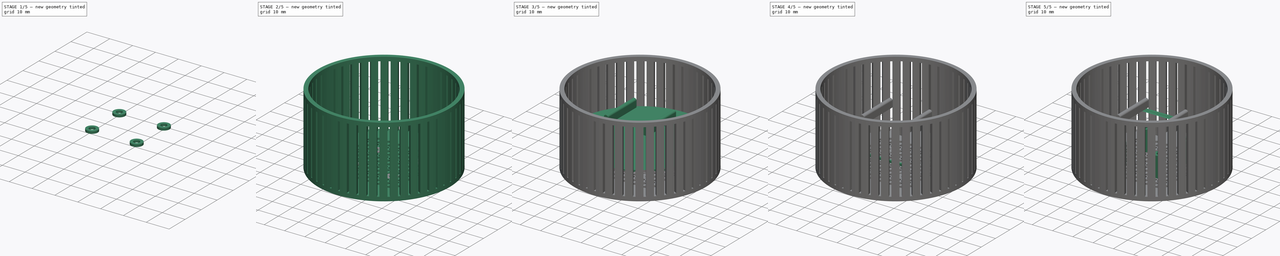
[diagram: build sequence overview — one tinted view per stage of 5, left to right]
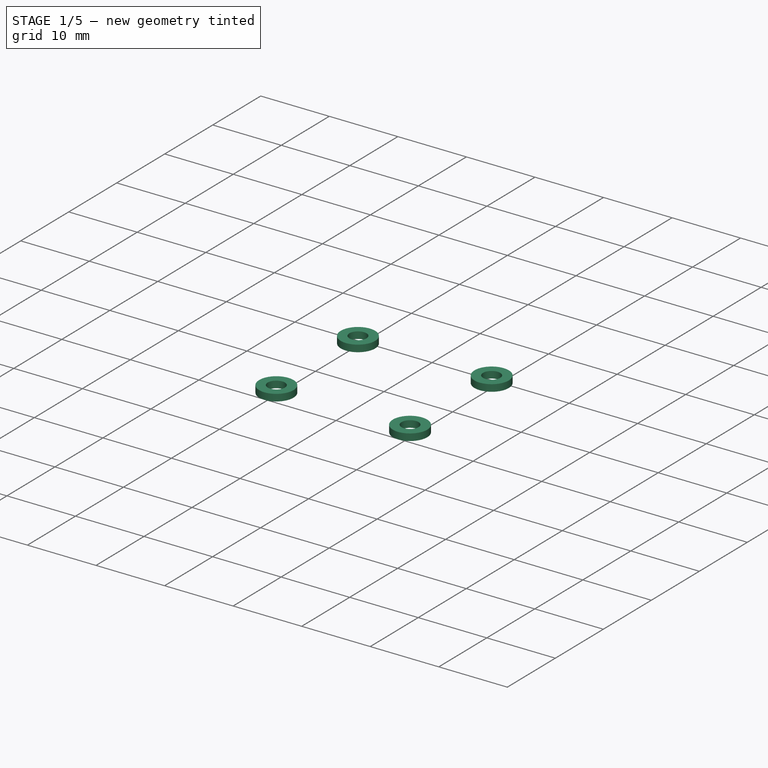
[diagram: stage 1 of 5 — iso view after this stage's code; geometry added in this stage tinted green]
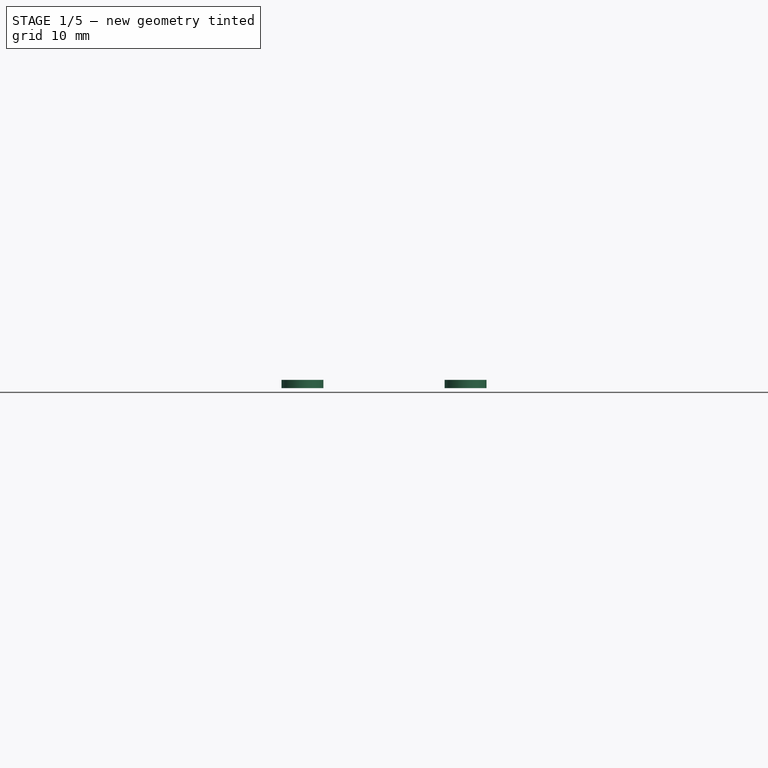
[diagram: stage 1 of 5 — front view after this stage's code; geometry added in this stage tinted green]
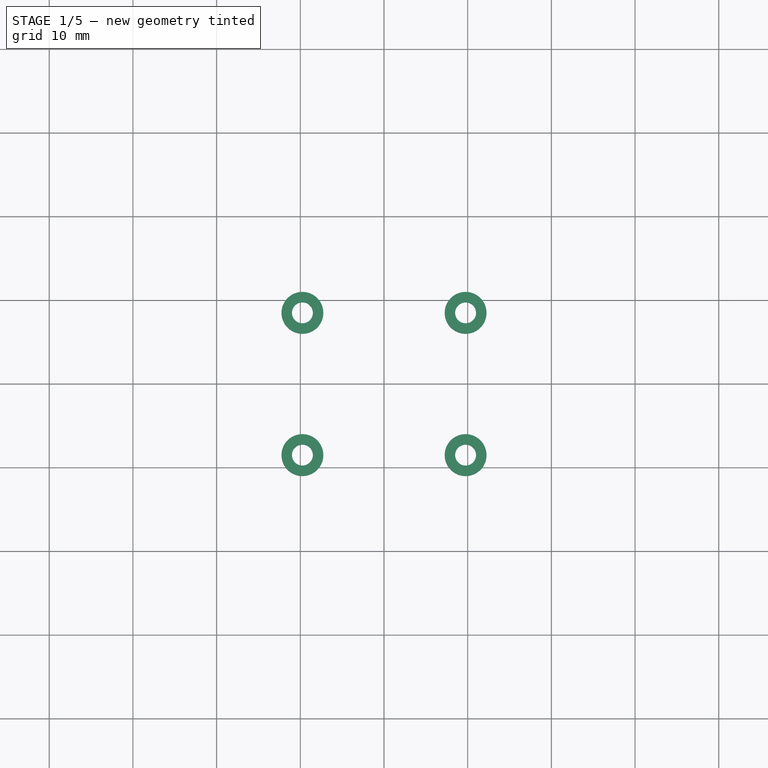
[diagram: stage 1 of 5 — top view after this stage's code; geometry added in this stage tinted green]
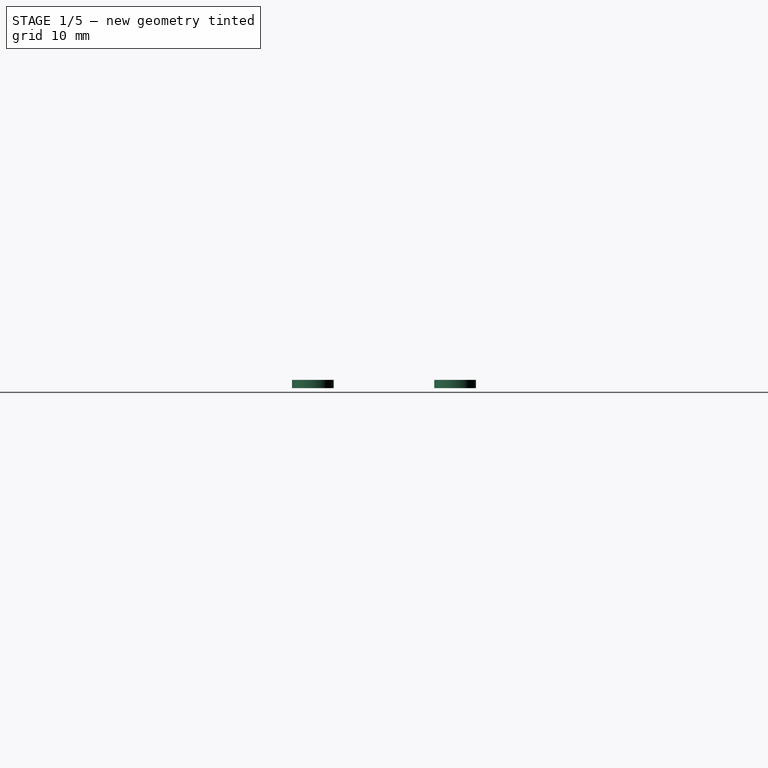
[diagram: stage 1 of 5 — right view after this stage's code; geometry added in this stage tinted green]
FCSTD DOCUMENT  (FreeCAD 0.20R29410 (Git))
Label: co2-sensor-case
License: All rights reserved
LicenseURL: http://en.wikipedia.org/wiki/All_rights_reserved
objects: Sketcher::SketchObject×9, Part::Extrusion×8, Part::Fillet×3, PartDesign::Pocket×2, PartDesign::FeatureBase×1, PartDesign::Thickness×1, Part::Cut×1, Part::Mirroring×1, PartDesign::PolarPattern×1, PartDesign::Body×1
note: 31 computed .brp shape members not serialized (recipe doc carries the construction recipe); baked Part::Feature solids carry a one-line shape summary decoded from their .brp

FEATURE [Sketcher::SketchObject] Sketch
  FullyConstrained = true
  sketch-geometry (1):
    g0: Circle CenterX=0 CenterY=0 CenterZ=0 NormalX=0 NormalY=0 NormalZ=1 AngleXU=0 Radius=32.5
  constraints (2):
    c: Coincident(g0,g-1)
    c: Diameter(g0) = 65
FEATURE [Part::Extrusion] Extrude
  Base = -> Sketch
  Dir = (0,0,1)
  DirMode = 2
  FaceMakerClass = Part::FaceMakerBullseye
  LengthFwd = 35
  LengthRev = 0
  Solid = true
  Symmetric = false
FEATURE [PartDesign::FeatureBase] BaseFeature
  BaseFeature = -> Extrude
FEATURE [PartDesign::Thickness] Thickness
  Base = -> BaseFeature [Face3]
  BaseFeature = -> BaseFeature
  Intersection = false
  Join = 0
  Mode = 0
  Reversed = true
  SupportTransform = false
  Value = 2
FEATURE [PartDesign::Body] Body
  BaseFeature = -> Extrude
  Group = -> [BaseFeature,Thickness,Sketch007,Pocket,Sketch008,Pocket001,PolarPattern]
  Origin = -> Origin
  Tip = -> PolarPattern
FEATURE [Part::Extrusion] Extrude007
  Base = -> Sketch001
  Dir = (0,0,1)
  DirMode = 2
  FaceMakerClass = Part::FaceMakerBullseye
  LengthFwd = -1
  LengthRev = 0
  Solid = true
  Symmetric = false
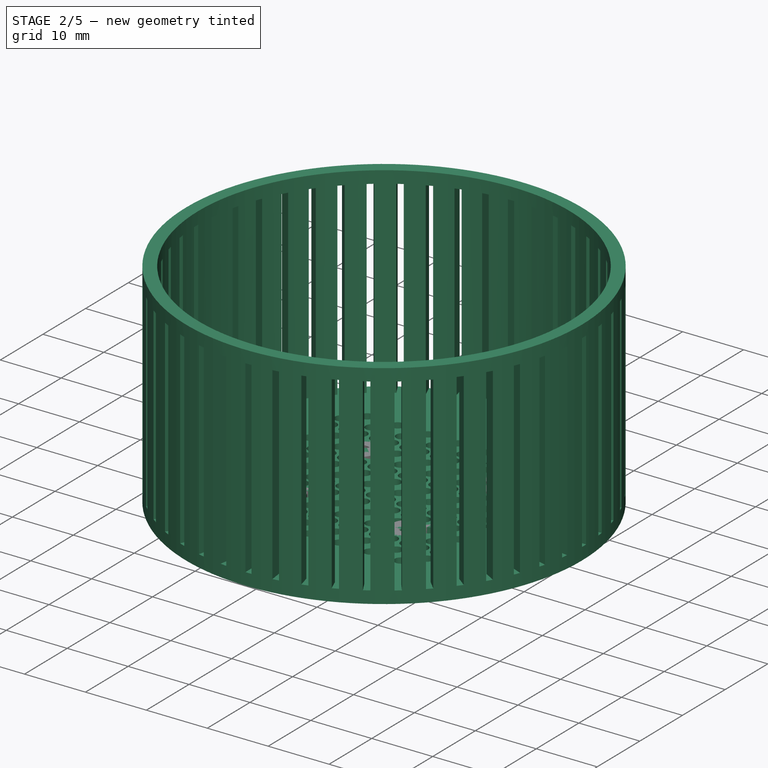
[diagram: stage 2 of 5 — iso view after this stage's code; geometry added in this stage tinted green]
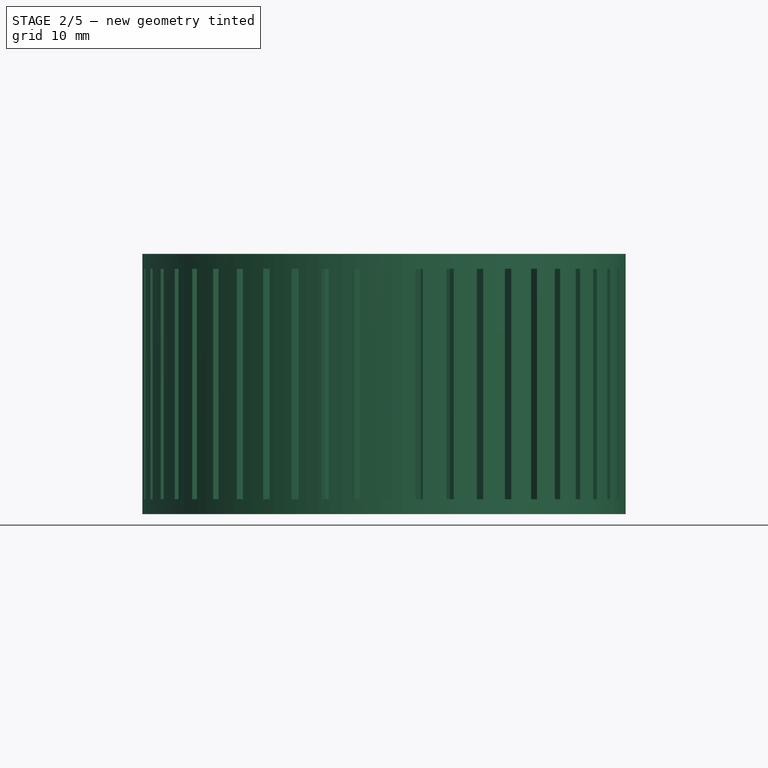
[diagram: stage 2 of 5 — front view after this stage's code; geometry added in this stage tinted green]
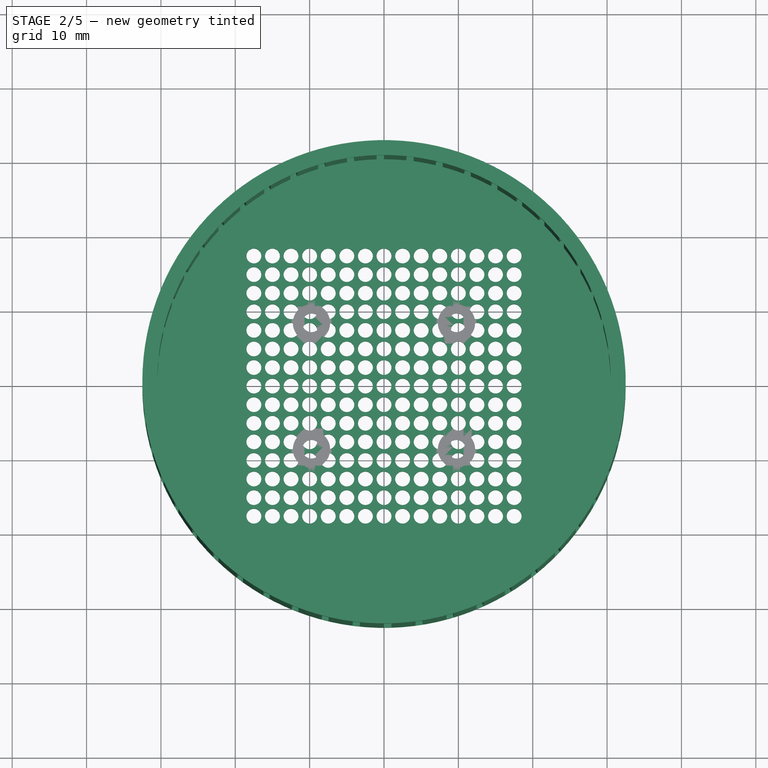
[diagram: stage 2 of 5 — top view after this stage's code; geometry added in this stage tinted green]
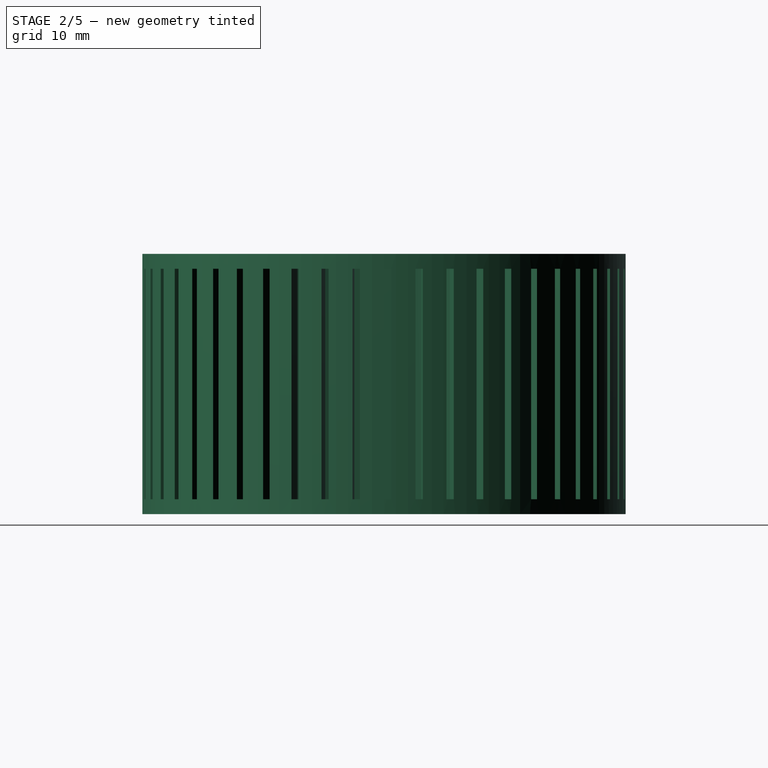
[diagram: stage 2 of 5 — right view after this stage's code; geometry added in this stage tinted green]
FEATURE [Sketcher::SketchObject] Sketch007
  FullyConstrained = true
  MapMode = 5
  Placement = pos=(0,0,0) rot=(1,0,0;3.14159rad)
  Support = -> [Thickness]
  sketch-geometry (449):
    g0: Circle CenterX=-17.5 CenterY=17.5 CenterZ=0 NormalX=0 NormalY=0 NormalZ=1 AngleXU=0 Radius=1
    g1: Circle CenterX=-15 CenterY=17.5 CenterZ=0 NormalX=0 NormalY=0 NormalZ=1 AngleXU=0 Radius=1
    g2: LineSegment StartX=-17.5 StartY=17.5 StartZ=0 EndX=-15 EndY=17.5 EndZ=0
    g3: Circle CenterX=-12.5 CenterY=17.5 CenterZ=0 NormalX=0 NormalY=0 NormalZ=1 AngleXU=0 Radius=1
    g4: LineSegment StartX=-15 StartY=17.5 StartZ=0 EndX=-12.5 EndY=17.5 EndZ=0
    g5: Circle CenterX=-10 CenterY=17.5 CenterZ=0 NormalX=0 NormalY=0 NormalZ=1 AngleXU=0 Radius=1
    g6: LineSegment StartX=-12.5 StartY=17.5 StartZ=0 EndX=-10 EndY=17.5 EndZ=0
    g7: Circle CenterX=-7.5 CenterY=17.5 CenterZ=0 NormalX=0 NormalY=0 NormalZ=1 AngleXU=0 Radius=1
    g8: LineSegment StartX=-10 StartY=17.5 StartZ=0 EndX=-7.5 EndY=17.5 EndZ=0
    g9: Circle CenterX=-5 CenterY=17.5 CenterZ=0 NormalX=0 NormalY=0 NormalZ=1 AngleXU=0 Radius=1
    g10: LineSegment StartX=-7.5 StartY=17.5 StartZ=0 EndX=-5 EndY=17.5 EndZ=0
    g11: Circle CenterX=-2.5 CenterY=17.5 CenterZ=0 NormalX=0 NormalY=0 NormalZ=1 AngleXU=0 Radius=1
    g12: LineSegment StartX=-5 StartY=17.5 StartZ=0 EndX=-2.5 EndY=17.5 EndZ=0
    g13: Circle CenterX=4e-16 CenterY=17.5 CenterZ=0 NormalX=0 NormalY=0 NormalZ=1 AngleXU=0 Radius=1
    g14: LineSegment StartX=-2.5 StartY=17.5 StartZ=0 EndX=4e-16 EndY=17.5 EndZ=0
    g15: Circle CenterX=2.5 CenterY=17.5 CenterZ=0 NormalX=0 NormalY=0 NormalZ=1 AngleXU=0 Radius=1
    g16: LineSegment StartX=4e-16 StartY=17.5 StartZ=0 EndX=2.5 EndY=17.5 EndZ=0
    g17: Circle CenterX=5 CenterY=17.5 CenterZ=0 NormalX=0 NormalY=0 NormalZ=1 AngleXU=0 Radius=1
    g18: LineSegment StartX=2.5 StartY=17.5 StartZ=0 EndX=5 EndY=17.5 EndZ=0
    g19: Circle CenterX=7.5 CenterY=17.5 CenterZ=0 NormalX=0 NormalY=0 NormalZ=1 AngleXU=0 Radius=1
    g20: LineSegment StartX=5 StartY=17.5 StartZ=0 EndX=7.5 EndY=17.5 EndZ=0
    g21: Circle CenterX=10 CenterY=17.5 CenterZ=0 NormalX=0 NormalY=0 NormalZ=1 AngleXU=0 Radius=1
    g22: LineSegment StartX=7.5 StartY=17.5 StartZ=0 EndX=10 EndY=17.5 EndZ=0
    g23: Circle CenterX=12.5 CenterY=17.5 CenterZ=0 NormalX=0 NormalY=0 NormalZ=1 AngleXU=0 Radius=1
    g24: LineSegment StartX=10 StartY=17.5 StartZ=0 EndX=12.5 EndY=17.5 EndZ=0
    g25: Circle CenterX=15 CenterY=17.5 CenterZ=0 NormalX=0 NormalY=0 NormalZ=1 AngleXU=0 Radius=1
    g26: LineSegment StartX=12.5 StartY=17.5 StartZ=0 EndX=15 EndY=17.5 EndZ=0
    g27: Circle CenterX=17.5 CenterY=17.5 CenterZ=0 NormalX=0 NormalY=0 NormalZ=1 AngleXU=0 Radius=1
    g28: LineSegment StartX=15 StartY=17.5 StartZ=0 EndX=17.5 EndY=17.5 EndZ=0
    g29: Circle CenterX=-17.5 CenterY=15 CenterZ=0 NormalX=0 NormalY=0 NormalZ=1 AngleXU=0 Radius=1
    g30: LineSegment StartX=-17.5 StartY=17.5 StartZ=0 EndX=-17.5 EndY=15 EndZ=0
    g31: Circle CenterX=-15 CenterY=15 CenterZ=0 NormalX=0 NormalY=0 NormalZ=1 AngleXU=0 Radius=1
    g32: LineSegment StartX=-17.5 StartY=15 StartZ=0 EndX=-15 EndY=15 EndZ=0
    g33: Circle CenterX=-12.5 CenterY=15 CenterZ=0 NormalX=0 NormalY=0 NormalZ=1 AngleXU=0 Radius=1
    g34: LineSegment StartX=-15 StartY=15 StartZ=0 EndX=-12.5 EndY=15 EndZ=0
    g35: Circle CenterX=-10 CenterY=15 CenterZ=0 NormalX=0 NormalY=0 NormalZ=1 AngleXU=0 Radius=1
    g36: LineSegment StartX=-12.5 StartY=15 StartZ=0 EndX=-10 EndY=15 EndZ=0
    g37: Circle CenterX=-7.5 CenterY=15 CenterZ=0 NormalX=0 NormalY=0 NormalZ=1 AngleXU=0 Radius=1
    g38: LineSegment StartX=-10 StartY=15 StartZ=0 EndX=-7.5 EndY=15 EndZ=0
    g39: Circle CenterX=-5 CenterY=15 CenterZ=0 NormalX=0 NormalY=0 NormalZ=1 AngleXU=0 Radius=1
    g40: LineSegment StartX=-7.5 StartY=15 StartZ=0 EndX=-5 EndY=15 EndZ=0
    g41: Circle CenterX=-2.5 CenterY=15 CenterZ=0 NormalX=0 NormalY=0 NormalZ=1 AngleXU=0 Radius=1
    g42: LineSegment StartX=-5 StartY=15 StartZ=0 EndX=-2.5 EndY=15 EndZ=0
    g43: Circle CenterX=1.33e-14 CenterY=15 CenterZ=0 NormalX=0 NormalY=0 NormalZ=1 AngleXU=0 Radius=1
    g44: LineSegment StartX=-2.5 StartY=15 StartZ=0 EndX=1.33e-14 EndY=15 EndZ=0
    g45: Circle CenterX=2.5 CenterY=15 CenterZ=0 NormalX=0 NormalY=0 NormalZ=1 AngleXU=0 Radius=1
    g46: LineSegment StartX=1.33e-14 StartY=15 StartZ=0 EndX=2.5 EndY=15 EndZ=0
    g47: Circle CenterX=5 CenterY=15 CenterZ=0 NormalX=0 NormalY=0 NormalZ=1 AngleXU=0 Radius=1
    g48: LineSegment StartX=2.5 StartY=15 StartZ=0 EndX=5 EndY=15 EndZ=0
    g49: Circle CenterX=7.5 CenterY=15 CenterZ=0 NormalX=0 NormalY=0 NormalZ=1 AngleXU=0 Radius=1
    g50: LineSegment StartX=5 StartY=15 StartZ=0 EndX=7.5 EndY=15 EndZ=0
    g51: Circle CenterX=10 CenterY=15 CenterZ=0 NormalX=0 NormalY=0 NormalZ=1 AngleXU=0 Radius=1
    g52: LineSegment StartX=7.5 StartY=15 StartZ=0 EndX=10 EndY=15 EndZ=0
    g53: Circle CenterX=12.5 CenterY=15 CenterZ=0 NormalX=0 NormalY=0 NormalZ=1 AngleXU=0 Radius=1
    g54: LineSegment StartX=10 StartY=15 StartZ=0 EndX=12.5 EndY=15 EndZ=0
    g55: Circle CenterX=15 CenterY=15 CenterZ=0 NormalX=0 NormalY=0 NormalZ=1 AngleXU=0 Radius=1
    g56: LineSegment StartX=12.5 StartY=15 StartZ=0 EndX=15 EndY=15 EndZ=0
    g57: Circle CenterX=17.5 CenterY=15 CenterZ=0 NormalX=0 NormalY=0 NormalZ=1 AngleXU=0 Radius=1
    g58: LineSegment StartX=15 StartY=15 StartZ=0 EndX=17.5 EndY=15 EndZ=0
    g59: Circle CenterX=-17.5 CenterY=12.5 CenterZ=0 NormalX=0 NormalY=0 NormalZ=1 AngleXU=0 Radius=1
    g60: LineSegment StartX=-17.5 StartY=15 StartZ=0 EndX=-17.5 EndY=12.5 EndZ=0
    g61: Circle CenterX=-15 CenterY=12.5 CenterZ=0 NormalX=0 NormalY=0 NormalZ=1 AngleXU=0 Radius=1
    g62: LineSegment StartX=-17.5 StartY=12.5 StartZ=0 EndX=-15 EndY=12.5 EndZ=0
    g63: Circle CenterX=-12.5 CenterY=12.5 CenterZ=0 NormalX=0 NormalY=0 NormalZ=1 AngleXU=0 Radius=1
    g64: LineSegment StartX=-15 StartY=12.5 StartZ=0 EndX=-12.5 EndY=12.5 EndZ=0
    g65: Circle CenterX=-10 CenterY=12.5 CenterZ=0 NormalX=0 NormalY=0 NormalZ=1 AngleXU=0 Radius=1
    g66: LineSegment StartX=-12.5 StartY=12.5 StartZ=0 EndX=-10 EndY=12.5 EndZ=0
    g67: Circle CenterX=-7.5 CenterY=12.5 CenterZ=0 NormalX=0 NormalY=0 NormalZ=1 AngleXU=0 Radius=1
    g68: LineSegment StartX=-10 StartY=12.5 StartZ=0 EndX=-7.5 EndY=12.5 EndZ=0
    g69: Circle CenterX=-5 CenterY=12.5 CenterZ=0 NormalX=0 NormalY=0 NormalZ=1 AngleXU=0 Radius=1
    g70: LineSegment StartX=-7.5 StartY=12.5 StartZ=0 EndX=-5 EndY=12.5 EndZ=0
    g71: Circle CenterX=-2.5 CenterY=12.5 CenterZ=0 NormalX=0 NormalY=0 NormalZ=1 AngleXU=0 Radius=1
    g72: LineSegment StartX=-5 StartY=12.5 StartZ=0 EndX=-2.5 EndY=12.5 EndZ=0
    g73: Circle CenterX=1.33e-14 CenterY=12.5 CenterZ=0 NormalX=0 NormalY=0 NormalZ=1 AngleXU=0 Radius=1
    g74: LineSegment StartX=-2.5 StartY=12.5 StartZ=0 EndX=1.33e-14 EndY=12.5 EndZ=0
    g75: Circle CenterX=2.5 CenterY=12.5 CenterZ=0 NormalX=0 NormalY=0 NormalZ=1 AngleXU=0 Radius=1
    g76: LineSegment StartX=1.33e-14 StartY=12.5 StartZ=0 EndX=2.5 EndY=12.5 EndZ=0
    g77: Circle CenterX=5 CenterY=12.5 CenterZ=0 NormalX=0 NormalY=0 NormalZ=1 AngleXU=0 Radius=1
    g78: LineSegment StartX=2.5 StartY=12.5 StartZ=0 EndX=5 EndY=12.5 EndZ=0
    g79: Circle CenterX=7.5 CenterY=12.5 CenterZ=0 NormalX=0 NormalY=0 NormalZ=1 AngleXU=0 Radius=1
    g80: LineSegment StartX=5 StartY=12.5 StartZ=0 EndX=7.5 EndY=12.5 EndZ=0
    g81: Circle CenterX=10 CenterY=12.5 CenterZ=0 NormalX=0 NormalY=0 NormalZ=1 AngleXU=0 Radius=1
    g82: LineSegment StartX=7.5 StartY=12.5 StartZ=0 EndX=10 EndY=12.5 EndZ=0
    g83: Circle CenterX=12.5 CenterY=12.5 CenterZ=0 NormalX=0 NormalY=0 NormalZ=1 AngleXU=0 Radius=1
    g84: LineSegment StartX=10 StartY=12.5 StartZ=0 EndX=12.5 EndY=12.5 EndZ=0
    g85: Circle CenterX=15 CenterY=12.5 CenterZ=0 NormalX=0 NormalY=0 NormalZ=1 AngleXU=0 Radius=1
    g86: LineSegment StartX=12.5 StartY=12.5 StartZ=0 EndX=15 EndY=12.5 EndZ=0
    g87: Circle CenterX=17.5 CenterY=12.5 CenterZ=0 NormalX=0 NormalY=0 NormalZ=1 AngleXU=0 Radius=1
    g88: LineSegment StartX=15 StartY=12.5 StartZ=0 EndX=17.5 EndY=12.5 EndZ=0
    g89: Circle CenterX=-17.5 CenterY=10 CenterZ=0 NormalX=0 NormalY=0 NormalZ=1 AngleXU=0 Radius=1
    g90: LineSegment StartX=-17.5 StartY=12.5 StartZ=0 EndX=-17.5 EndY=10 EndZ=0
    g91: Circle CenterX=-15 CenterY=10 CenterZ=0 NormalX=0 NormalY=0 NormalZ=1 AngleXU=0 Radius=1
    g92: LineSegment StartX=-17.5 StartY=10 StartZ=0 EndX=-15 EndY=10 EndZ=0
    g93: Circle CenterX=-12.5 CenterY=10 CenterZ=0 NormalX=0 NormalY=0 NormalZ=1 AngleXU=0 Radius=1
    g94: LineSegment StartX=-15 StartY=10 StartZ=0 EndX=-12.5 EndY=10 EndZ=0
    g95: Circle CenterX=-10 CenterY=10 CenterZ=0 NormalX=0 NormalY=0 NormalZ=1 AngleXU=0 Radius=1
    g96: LineSegment StartX=-12.5 StartY=10 StartZ=0 EndX=-10 EndY=10 EndZ=0
    g97: Circle CenterX=-7.5 CenterY=10 CenterZ=0 NormalX=0 NormalY=0 NormalZ=1 AngleXU=0 Radius=1
    g98: LineSegment StartX=-10 StartY=10 StartZ=0 EndX=-7.5 EndY=10 EndZ=0
    g99: Circle CenterX=-5 CenterY=10 CenterZ=0 NormalX=0 NormalY=0 NormalZ=1 AngleXU=0 Radius=1
    g100: LineSegment StartX=-7.5 StartY=10 StartZ=0 EndX=-5 EndY=10 EndZ=0
    g101: Circle CenterX=-2.5 CenterY=10 CenterZ=0 NormalX=0 NormalY=0 NormalZ=1 AngleXU=0 Radius=1
    g102: LineSegment StartX=-5 StartY=10 StartZ=0 EndX=-2.5 EndY=10 EndZ=0
    g103: Circle CenterX=1.33e-14 CenterY=10 CenterZ=0 NormalX=0 NormalY=0 NormalZ=1 AngleXU=0 Radius=1
    g104: LineSegment StartX=-2.5 StartY=10 StartZ=0 EndX=1.33e-14 EndY=10 EndZ=0
    g105: Circle CenterX=2.5 CenterY=10 CenterZ=0 NormalX=0 NormalY=0 NormalZ=1 AngleXU=0 Radius=1
    g106: LineSegment StartX=1.33e-14 StartY=10 StartZ=0 EndX=2.5 EndY=10 EndZ=0
    g107: Circle CenterX=5 CenterY=10 CenterZ=0 NormalX=0 NormalY=0 NormalZ=1 AngleXU=0 Radius=1
    g108: LineSegment StartX=2.5 StartY=10 StartZ=0 EndX=5 EndY=10 EndZ=0
    g109: Circle CenterX=7.5 CenterY=10 CenterZ=0 NormalX=0 NormalY=0 NormalZ=1 AngleXU=0 Radius=1
    g110: LineSegment StartX=5 StartY=10 StartZ=0 EndX=7.5 EndY=10 EndZ=0
    g111: Circle CenterX=10 CenterY=10 CenterZ=0 NormalX=0 NormalY=0 NormalZ=1 AngleXU=0 Radius=1
    g112: LineSegment StartX=7.5 StartY=10 StartZ=0 EndX=10 EndY=10 EndZ=0
    g113: Circle CenterX=12.5 CenterY=10 CenterZ=0 NormalX=0 NormalY=0 NormalZ=1 AngleXU=0 Radius=1
    g114: LineSegment StartX=10 StartY=10 StartZ=0 EndX=12.5 EndY=10 EndZ=0
    g115: Circle CenterX=15 CenterY=10 CenterZ=0 NormalX=0 NormalY=0 NormalZ=1 AngleXU=0 Radius=1
    g116: LineSegment StartX=12.5 StartY=10 StartZ=0 EndX=15 EndY=10 EndZ=0
    g117: Circle CenterX=17.5 CenterY=10 CenterZ=0 NormalX=0 NormalY=0 NormalZ=1 AngleXU=0 Radius=1
    g118: LineSegment StartX=15 StartY=10 StartZ=0 EndX=17.5 EndY=10 EndZ=0
    g119: Circle CenterX=-17.5 CenterY=7.5 CenterZ=0 NormalX=0 NormalY=0 NormalZ=1 AngleXU=0 Radius=1
    g120: LineSegment StartX=-17.5 StartY=10 StartZ=0 EndX=-17.5 EndY=7.5 EndZ=0
    g121: Circle CenterX=-15 CenterY=7.5 CenterZ=0 NormalX=0 NormalY=0 NormalZ=1 AngleXU=0 Radius=1
    g122: LineSegment StartX=-17.5 StartY=7.5 StartZ=0 EndX=-15 EndY=7.5 EndZ=0
    g123: Circle CenterX=-12.5 CenterY=7.5 CenterZ=0 NormalX=0 NormalY=0 NormalZ=1 AngleXU=0 Radius=1
    g124: LineSegment StartX=-15 StartY=7.5 StartZ=0 EndX=-12.5 EndY=7.5 EndZ=0
    g125: Circle CenterX=-10 CenterY=7.5 CenterZ=0 NormalX=0 NormalY=0 NormalZ=1 AngleXU=0 Radius=1
    g126: LineSegment StartX=-12.5 StartY=7.5 StartZ=0 EndX=-10 EndY=7.5 EndZ=0
    g127: Circle CenterX=-7.5 CenterY=7.5 CenterZ=0 NormalX=0 NormalY=0 NormalZ=1 AngleXU=0 Radius=1
    g128: LineSegment StartX=-10 StartY=7.5 StartZ=0 EndX=-7.5 EndY=7.5 EndZ=0
    g129: Circle CenterX=-5 CenterY=7.5 CenterZ=0 NormalX=0 NormalY=0 NormalZ=1 AngleXU=0 Radius=1
    g130: LineSegment StartX=-7.5 StartY=7.5 StartZ=0 EndX=-5 EndY=7.5 EndZ=0
    g131: Circle CenterX=-2.5 CenterY=7.5 CenterZ=0 NormalX=0 NormalY=0 NormalZ=1 AngleXU=0 Radius=1
    g132: LineSegment StartX=-5 StartY=7.5 StartZ=0 EndX=-2.5 EndY=7.5 EndZ=0
    g133: Circle CenterX=1.33e-14 CenterY=7.5 CenterZ=0 NormalX=0 NormalY=0 NormalZ=1 AngleXU=0 Radius=1
    g134: LineSegment StartX=-2.5 StartY=7.5 StartZ=0 EndX=1.33e-14 EndY=7.5 EndZ=0
    g135: Circle CenterX=2.5 CenterY=7.5 CenterZ=0 NormalX=0 NormalY=0 NormalZ=1 AngleXU=0 Radius=1
    g136: LineSegment StartX=1.33e-14 StartY=7.5 StartZ=0 EndX=2.5 EndY=7.5 EndZ=0
    g137: Circle CenterX=5 CenterY=7.5 CenterZ=0 NormalX=0 NormalY=0 NormalZ=1 AngleXU=0 Radius=1
    g138: LineSegment StartX=2.5 StartY=7.5 StartZ=0 EndX=5 EndY=7.5 EndZ=0
    g139: Circle CenterX=7.5 CenterY=7.5 CenterZ=0 NormalX=0 NormalY=0 NormalZ=1 AngleXU=0 Radius=1
    g140: LineSegment StartX=5 StartY=7.5 StartZ=0 EndX=7.5 EndY=7.5 EndZ=0
    g141: Circle CenterX=10 CenterY=7.5 CenterZ=0 NormalX=0 NormalY=0 NormalZ=1 AngleXU=0 Radius=1
    g142: LineSegment StartX=7.5 StartY=7.5 StartZ=0 EndX=10 EndY=7.5 EndZ=0
    g143: Circle CenterX=12.5 CenterY=7.5 CenterZ=0 NormalX=0 NormalY=0 NormalZ=1 AngleXU=0 Radius=1
    g144: LineSegment StartX=10 StartY=7.5 StartZ=0 EndX=12.5 EndY=7.5 EndZ=0
    g145: Circle CenterX=15 CenterY=7.5 CenterZ=0 NormalX=0 NormalY=0 NormalZ=1 AngleXU=0 Radius=1
    g146: LineSegment StartX=12.5 StartY=7.5 StartZ=0 EndX=15 EndY=7.5 EndZ=0
    g147: Circle CenterX=17.5 CenterY=7.5 CenterZ=0 NormalX=0 NormalY=0 NormalZ=1 AngleXU=0 Radius=1
    g148: LineSegment StartX=15 StartY=7.5 StartZ=0 EndX=17.5 EndY=7.5 EndZ=0
    g149: Circle CenterX=-17.5 CenterY=5 CenterZ=0 NormalX=0 NormalY=0 NormalZ=1 AngleXU=0 Radius=1
    g150: LineSegment StartX=-17.5 StartY=7.5 StartZ=0 EndX=-17.5 EndY=5 EndZ=0
    g151: Circle CenterX=-15 CenterY=5 CenterZ=0 NormalX=0 NormalY=0 NormalZ=1 AngleXU=0 Radius=1
    g152: LineSegment StartX=-17.5 StartY=5 StartZ=0 EndX=-15 EndY=5 EndZ=0
    g153: Circle CenterX=-12.5 CenterY=5 CenterZ=0 NormalX=0 NormalY=0 NormalZ=1 AngleXU=0 Radius=1
    g154: LineSegment StartX=-15 StartY=5 StartZ=0 EndX=-12.5 EndY=5 EndZ=0
    g155: Circle CenterX=-10 CenterY=5 CenterZ=0 NormalX=0 NormalY=0 NormalZ=1 AngleXU=0 Radius=1
    g156: LineSegment StartX=-12.5 StartY=5 StartZ=0 EndX=-10 EndY=5 EndZ=0
    g157: Circle CenterX=-7.5 CenterY=5 CenterZ=0 NormalX=0 NormalY=0 NormalZ=1 AngleXU=0 Radius=1
    g158: LineSegment StartX=-10 StartY=5 StartZ=0 EndX=-7.5 EndY=5 EndZ=0
    g159: Circle CenterX=-5 CenterY=5 CenterZ=0 NormalX=0 NormalY=0 NormalZ=1 AngleXU=0 Radius=1
    g160: LineSegment StartX=-7.5 StartY=5 StartZ=0 EndX=-5 EndY=5 EndZ=0
    g161: Circle CenterX=-2.5 CenterY=5 CenterZ=0 NormalX=0 NormalY=0 NormalZ=1 AngleXU=0 Radius=1
    g162: LineSegment StartX=-5 StartY=5 StartZ=0 EndX=-2.5 EndY=5 EndZ=0
    g163: Circle CenterX=1.33e-14 CenterY=5 CenterZ=0 NormalX=0 NormalY=0 NormalZ=1 AngleXU=0 Radius=1
    g164: LineSegment StartX=-2.5 StartY=5 StartZ=0 EndX=1.33e-14 EndY=5 EndZ=0
    g165: Circle CenterX=2.5 CenterY=5 CenterZ=0 NormalX=0 NormalY=0 NormalZ=1 AngleXU=0 Radius=1
    g166: LineSegment StartX=1.33e-14 StartY=5 StartZ=0 EndX=2.5 EndY=5 EndZ=0
    g167: Circle CenterX=5 CenterY=5 CenterZ=0 NormalX=0 NormalY=0 NormalZ=1 AngleXU=0 Radius=1
    g168: LineSegment StartX=2.5 StartY=5 StartZ=0 EndX=5 EndY=5 EndZ=0
    g169: Circle CenterX=7.5 CenterY=5 CenterZ=0 NormalX=0 NormalY=0 NormalZ=1 AngleXU=0 Radius=1
    g170: LineSegment StartX=5 StartY=5 StartZ=0 EndX=7.5 EndY=5 EndZ=0
    g171: Circle CenterX=10 CenterY=5 CenterZ=0 NormalX=0 NormalY=0 NormalZ=1 AngleXU=0 Radius=1
    g172: LineSegment StartX=7.5 StartY=5 StartZ=0 EndX=10 EndY=5 EndZ=0
    g173: Circle CenterX=12.5 CenterY=5 CenterZ=0 NormalX=0 NormalY=0 NormalZ=1 AngleXU=0 Radius=1
    g174: LineSegment StartX=10 StartY=5 StartZ=0 EndX=12.5 EndY=5 EndZ=0
    g175: Circle CenterX=15 CenterY=5 CenterZ=0 NormalX=0 NormalY=0 NormalZ=1 AngleXU=0 Radius=1
    g176: LineSegment StartX=12.5 StartY=5 StartZ=0 EndX=15 EndY=5 EndZ=0
    g177: Circle CenterX=17.5 CenterY=5 CenterZ=0 NormalX=0 NormalY=0 NormalZ=1 AngleXU=0 Radius=1
    g178: LineSegment StartX=15 StartY=5 StartZ=0 EndX=17.5 EndY=5 EndZ=0
    g179: Circle CenterX=-17.5 CenterY=2.5 CenterZ=0 NormalX=0 NormalY=0 NormalZ=1 AngleXU=0 Radius=1
    g180: LineSegment StartX=-17.5 StartY=5 StartZ=0 EndX=-17.5 EndY=2.5 EndZ=0
    g181: Circle CenterX=-15 CenterY=2.5 CenterZ=0 NormalX=0 NormalY=0 NormalZ=1 AngleXU=0 Radius=1
    g182: LineSegment StartX=-17.5 StartY=2.5 StartZ=0 EndX=-15 EndY=2.5 EndZ=0
    g183: Circle CenterX=-12.5 CenterY=2.5 CenterZ=0 NormalX=0 NormalY=0 NormalZ=1 AngleXU=0 Radius=1
    g184: LineSegment StartX=-15 StartY=2.5 StartZ=0 EndX=-12.5 EndY=2.5 EndZ=0
    g185: Circle CenterX=-10 CenterY=2.5 CenterZ=0 NormalX=0 NormalY=0 NormalZ=1 AngleXU=0 Radius=1
    g186: LineSegment StartX=-12.5 StartY=2.5 StartZ=0 EndX=-10 EndY=2.5 EndZ=0
    g187: Circle CenterX=-7.5 CenterY=2.5 CenterZ=0 NormalX=0 NormalY=0 NormalZ=1 AngleXU=0 Radius=1
    g188: LineSegment StartX=-10 StartY=2.5 StartZ=0 EndX=-7.5 EndY=2.5 EndZ=0
    g189: Circle CenterX=-5 CenterY=2.5 CenterZ=0 NormalX=0 NormalY=0 NormalZ=1 AngleXU=0 Radius=1
    g190: LineSegment StartX=-7.5 StartY=2.5 StartZ=0 EndX=-5 EndY=2.5 EndZ=0
    g191: Circle CenterX=-2.5 CenterY=2.5 CenterZ=0 NormalX=0 NormalY=0 NormalZ=1 AngleXU=0 Radius=1
    g192: LineSegment StartX=-5 StartY=2.5 StartZ=0 EndX=-2.5 EndY=2.5 EndZ=0
    g193: Circle CenterX=1.33e-14 CenterY=2.5 CenterZ=0 NormalX=0 NormalY=0 NormalZ=1 AngleXU=0 Radius=1
    g194: LineSegment StartX=-2.5 StartY=2.5 StartZ=0 EndX=1.33e-14 EndY=2.5 EndZ=0
    g195: Circle CenterX=2.5 CenterY=2.5 CenterZ=0 NormalX=0 NormalY=0 NormalZ=1 AngleXU=0 Radius=1
    g196: LineSegment StartX=1.33e-14 StartY=2.5 StartZ=0 EndX=2.5 EndY=2.5 EndZ=0
    g197: Circle CenterX=5 CenterY=2.5 CenterZ=0 NormalX=0 NormalY=0 NormalZ=1 AngleXU=0 Radius=1
    g198: LineSegment StartX=2.5 StartY=2.5 StartZ=0 EndX=5 EndY=2.5 EndZ=0
    g199: Circle CenterX=7.5 CenterY=2.5 CenterZ=0 NormalX=0 NormalY=0 NormalZ=1 AngleXU=0 Radius=1
    g200: LineSegment StartX=5 StartY=2.5 StartZ=0 EndX=7.5 EndY=2.5 EndZ=0
    g201: Circle CenterX=10 CenterY=2.5 CenterZ=0 NormalX=0 NormalY=0 NormalZ=1 AngleXU=0 Radius=1
    g202: LineSegment StartX=7.5 StartY=2.5 StartZ=0 EndX=10 EndY=2.5 EndZ=0
    g203: Circle CenterX=12.5 CenterY=2.5 CenterZ=0 NormalX=0 NormalY=0 NormalZ=1 AngleXU=0 Radius=1
    g204: LineSegment StartX=10 StartY=2.5 StartZ=0 EndX=12.5 EndY=2.5 EndZ=0
    g205: Circle CenterX=15 CenterY=2.5 CenterZ=0 NormalX=0 NormalY=0 NormalZ=1 AngleXU=0 Radius=1
    g206: LineSegment StartX=12.5 StartY=2.5 StartZ=0 EndX=15 EndY=2.5 EndZ=0
    g207: Circle CenterX=17.5 CenterY=2.5 CenterZ=0 NormalX=0 NormalY=0 NormalZ=1 AngleXU=0 Radius=1
    g208: LineSegment StartX=15 StartY=2.5 StartZ=0 EndX=17.5 EndY=2.5 EndZ=0
    g209: Circle CenterX=-17.5 CenterY=-5.3302e-12 CenterZ=0 NormalX=0 NormalY=0 NormalZ=1 AngleXU=0 Radius=1
    g210: LineSegment StartX=-17.5 StartY=2.5 StartZ=0 EndX=-17.5 EndY=-5.3304e-12 EndZ=0
    g211: Circle CenterX=-15 CenterY=-5.3302e-12 CenterZ=0 NormalX=0 NormalY=0 NormalZ=1 AngleXU=0 Radius=1
    g212: LineSegment StartX=-17.5 StartY=-5.3302e-12 StartZ=0 EndX=-15 EndY=-5.3302e-12 EndZ=0
    g213: Circle CenterX=-12.5 CenterY=-5.3302e-12 CenterZ=0 NormalX=0 NormalY=0 NormalZ=1 AngleXU=0 Radius=1
    g214: LineSegment StartX=-15 StartY=-5.3302e-12 StartZ=0 EndX=-12.5 EndY=-5.3302e-12 EndZ=0
    g215: Circle CenterX=-10 CenterY=-5.3302e-12 CenterZ=0 NormalX=0 NormalY=0 NormalZ=1 AngleXU=0 Radius=1
    g216: LineSegment StartX=-12.5 StartY=-5.3302e-12 StartZ=0 EndX=-10 EndY=-5.3302e-12 EndZ=0
    g217: Circle CenterX=-7.5 CenterY=-5.3302e-12 CenterZ=0 NormalX=0 NormalY=0 NormalZ=1 AngleXU=0 Radius=1
    g218: LineSegment StartX=-10 StartY=-5.3302e-12 StartZ=0 EndX=-7.5 EndY=-5.3302e-12 EndZ=0
    g219: Circle CenterX=-5 CenterY=-5.3302e-12 CenterZ=0 NormalX=0 NormalY=0 NormalZ=1 AngleXU=0 Radius=1
    g220: LineSegment StartX=-7.5 StartY=-5.3302e-12 StartZ=0 EndX=-5 EndY=-5.3302e-12 EndZ=0
    g221: Circle CenterX=-2.5 CenterY=-5.3302e-12 CenterZ=0 NormalX=0 NormalY=0 NormalZ=1 AngleXU=0 Radius=1
    g222: LineSegment StartX=-5 StartY=-5.3302e-12 StartZ=0 EndX=-2.5 EndY=-5.3302e-12 EndZ=0
    g223: Circle CenterX=1.36e-14 CenterY=-5.3302e-12 CenterZ=0 NormalX=0 NormalY=0 NormalZ=1 AngleXU=0 Radius=1
    g224: LineSegment StartX=-2.5 StartY=-5.3302e-12 StartZ=0 EndX=1.38e-14 EndY=-5.3302e-12 EndZ=0
    g225: Circle CenterX=2.5 CenterY=-5.3302e-12 CenterZ=0 NormalX=0 NormalY=0 NormalZ=1 AngleXU=0 Radius=1
    g226: LineSegment StartX=1.36e-14 StartY=-5.3302e-12 StartZ=0 EndX=2.5 EndY=-5.3302e-12 EndZ=0
    g227: Circle CenterX=5 CenterY=-5.3302e-12 CenterZ=0 NormalX=0 NormalY=0 NormalZ=1 AngleXU=0 Radius=1
    g228: LineSegment StartX=2.5 StartY=-5.3302e-12 StartZ=0 EndX=5 EndY=-5.3302e-12 EndZ=0
    g229: Circle CenterX=7.5 CenterY=-5.3302e-12 CenterZ=0 NormalX=0 NormalY=0 NormalZ=1 AngleXU=0 Radius=1
    g230: LineSegment StartX=5 StartY=-5.3302e-12 StartZ=0 EndX=7.5 EndY=-5.3302e-12 EndZ=0
    g231: Circle CenterX=10 CenterY=-5.3302e-12 CenterZ=0 NormalX=0 NormalY=0 NormalZ=1 AngleXU=0 Radius=1
    g232: LineSegment StartX=7.5 StartY=-5.3302e-12 StartZ=0 EndX=10 EndY=-5.3302e-12 EndZ=0
    g233: Circle CenterX=12.5 CenterY=-5.3302e-12 CenterZ=0 NormalX=0 NormalY=0 NormalZ=1 AngleXU=0 Radius=1
    g234: LineSegment StartX=10 StartY=-5.3302e-12 StartZ=0 EndX=12.5 EndY=-5.3302e-12 EndZ=0
    g235: Circle CenterX=15 CenterY=-5.3302e-12 CenterZ=0 NormalX=0 NormalY=0 NormalZ=1 AngleXU=0 Radius=1
    g236: LineSegment StartX=12.5 StartY=-5.3302e-12 StartZ=0 EndX=15 EndY=-5.3302e-12 EndZ=0
    g237: Circle CenterX=17.5 CenterY=-5.3302e-12 CenterZ=0 NormalX=0 NormalY=0 NormalZ=1 AngleXU=0 Radius=1
    g238: LineSegment StartX=15 StartY=-5.3302e-12 StartZ=0 EndX=17.5 EndY=-5.3302e-12 EndZ=0
    g239: Circle CenterX=-17.5 CenterY=-2.5 CenterZ=0 NormalX=0 NormalY=0 NormalZ=1 AngleXU=0 Radius=1
    g240: LineSegment StartX=-17.5 StartY=-5.3302e-12 StartZ=0 EndX=-17.5 EndY=-2.5 EndZ=0
    g241: Circle CenterX=-15 CenterY=-2.5 CenterZ=0 NormalX=0 NormalY=0 NormalZ=1 AngleXU=0 Radius=1
    g242: LineSegment StartX=-17.5 StartY=-2.5 StartZ=0 EndX=-15 EndY=-2.5 EndZ=0
    g243: Circle CenterX=-12.5 CenterY=-2.5 CenterZ=0 NormalX=0 NormalY=0 NormalZ=1 AngleXU=0 Radius=1
    g244: LineSegment StartX=-15 StartY=-2.5 StartZ=0 EndX=-12.5 EndY=-2.5 EndZ=0
    g245: Circle CenterX=-10 CenterY=-2.5 CenterZ=0 NormalX=0 NormalY=0 NormalZ=1 AngleXU=0 Radius=1
    g246: LineSegment StartX=-12.5 StartY=-2.5 StartZ=0 EndX=-10 EndY=-2.5 EndZ=0
    g247: Circle CenterX=-7.5 CenterY=-2.5 CenterZ=0 NormalX=0 NormalY=0 NormalZ=1 AngleXU=0 Radius=1
    g248: LineSegment StartX=-10 StartY=-2.5 StartZ=0 EndX=-7.5 EndY=-2.5 EndZ=0
    g249: Circle CenterX=-5 CenterY=-2.5 CenterZ=0 NormalX=0 NormalY=0 NormalZ=1 AngleXU=0 Radius=1
    g250: LineSegment StartX=-7.5 StartY=-2.5 StartZ=0 EndX=-5 EndY=-2.5 EndZ=0
    g251: Circle CenterX=-2.5 CenterY=-2.5 CenterZ=0 NormalX=0 NormalY=0 NormalZ=1 AngleXU=0 Radius=1
    g252: LineSegment StartX=-5 StartY=-2.5 StartZ=0 EndX=-2.5 EndY=-2.5 EndZ=0
    g253: Circle CenterX=1.38e-14 CenterY=-2.5 CenterZ=0 NormalX=0 NormalY=0 NormalZ=1 AngleXU=0 Radius=1
    g254: LineSegment StartX=-2.5 StartY=-2.5 StartZ=0 EndX=1.38e-14 EndY=-2.5 EndZ=0
    g255: Circle CenterX=2.5 CenterY=-2.5 CenterZ=0 NormalX=0 NormalY=0 NormalZ=1 AngleXU=0 Radius=1
    g256: LineSegment StartX=1.38e-14 StartY=-2.5 StartZ=0 EndX=2.5 EndY=-2.5 EndZ=0
    g257: Circle CenterX=5 CenterY=-2.5 CenterZ=0 NormalX=0 NormalY=0 NormalZ=1 AngleXU=0 Radius=1
    g258: LineSegment StartX=2.5 StartY=-2.5 StartZ=0 EndX=5 EndY=-2.5 EndZ=0
    g259: Circle CenterX=7.5 CenterY=-2.5 CenterZ=0 NormalX=0 NormalY=0 NormalZ=1 AngleXU=0 Radius=1
    g260: LineSegment StartX=5 StartY=-2.5 StartZ=0 EndX=7.5 EndY=-2.5 EndZ=0
    g261: Circle CenterX=10 CenterY=-2.5 CenterZ=0 NormalX=0 NormalY=0 NormalZ=1 AngleXU=0 Radius=1
    g262: LineSegment StartX=7.5 StartY=-2.5 StartZ=0 EndX=10 EndY=-2.5 EndZ=0
    g263: Circle CenterX=12.5 CenterY=-2.5 CenterZ=0 NormalX=0 NormalY=0 NormalZ=1 AngleXU=0 Radius=1
    g264: LineSegment StartX=10 StartY=-2.5 StartZ=0 EndX=12.5 EndY=-2.5 EndZ=0
    g265: Circle CenterX=15 CenterY=-2.5 CenterZ=0 NormalX=0 NormalY=0 NormalZ=1 AngleXU=0 Radius=1
    g266: LineSegment StartX=12.5 StartY=-2.5 StartZ=0 EndX=15 EndY=-2.5 EndZ=0
    g267: Circle CenterX=17.5 CenterY=-2.5 CenterZ=0 NormalX=0 NormalY=0 NormalZ=1 AngleXU=0 Radius=1
    g268: LineSegment StartX=15 StartY=-2.5 StartZ=0 EndX=17.5 EndY=-2.5 EndZ=0
    g269: Circle CenterX=-17.5 CenterY=-5 CenterZ=0 NormalX=0 NormalY=0 NormalZ=1 AngleXU=0 Radius=1
    g270: LineSegment StartX=-17.5 StartY=-2.5 StartZ=0 EndX=-17.5 EndY=-5 EndZ=0
    g271: Circle CenterX=-15 CenterY=-5 CenterZ=0 NormalX=0 NormalY=0 NormalZ=1 AngleXU=0 Radius=1
    g272: LineSegment StartX=-17.5 StartY=-5 StartZ=0 EndX=-15 EndY=-5 EndZ=0
    g273: Circle CenterX=-12.5 CenterY=-5 CenterZ=0 NormalX=0 NormalY=0 NormalZ=1 AngleXU=0 Radius=1
    g274: LineSegment StartX=-15 StartY=-5 StartZ=0 EndX=-12.5 EndY=-5 EndZ=0
    g275: Circle CenterX=-10 CenterY=-5 CenterZ=0 NormalX=0 NormalY=0 NormalZ=1 AngleXU=0 Radius=1
    g276: LineSegment StartX=-12.5 StartY=-5 StartZ=0 EndX=-10 EndY=-5 EndZ=0
    g277: Circle CenterX=-7.5 CenterY=-5 CenterZ=0 NormalX=0 NormalY=0 NormalZ=1 AngleXU=0 Radius=1
    g278: LineSegment StartX=-10 StartY=-5 StartZ=0 EndX=-7.5 EndY=-5 EndZ=0
    g279: Circle CenterX=-5 CenterY=-5 CenterZ=0 NormalX=0 NormalY=0 NormalZ=1 AngleXU=0 Radius=1
    g280: LineSegment StartX=-7.5 StartY=-5 StartZ=0 EndX=-5 EndY=-5 EndZ=0
    g281: Circle CenterX=-2.5 CenterY=-5 CenterZ=0 NormalX=0 NormalY=0 NormalZ=1 AngleXU=0 Radius=1
    g282: LineSegment StartX=-5 StartY=-5 StartZ=0 EndX=-2.5 EndY=-5 EndZ=0
    g283: Circle CenterX=1.38e-14 CenterY=-5 CenterZ=0 NormalX=0 NormalY=0 NormalZ=1 AngleXU=0 Radius=1
    g284: LineSegment StartX=-2.5 StartY=-5 StartZ=0 EndX=1.38e-14 EndY=-5 EndZ=0
    g285: Circle CenterX=2.5 CenterY=-5 CenterZ=0 NormalX=0 NormalY=0 NormalZ=1 AngleXU=0 Radius=1
    g286: LineSegment StartX=1.38e-14 StartY=-5 StartZ=0 EndX=2.5 EndY=-5 EndZ=0
    g287: Circle CenterX=5 CenterY=-5 CenterZ=0 NormalX=0 NormalY=0 NormalZ=1 AngleXU=0 Radius=1
    g288: LineSegment StartX=2.5 StartY=-5 StartZ=0 EndX=5 EndY=-5 EndZ=0
    g289: Circle CenterX=7.5 CenterY=-5 CenterZ=0 NormalX=0 NormalY=0 NormalZ=1 AngleXU=0 Radius=1
    g290: LineSegment StartX=5 StartY=-5 StartZ=0 EndX=7.5 EndY=-5 EndZ=0
    g291: Circle CenterX=10 CenterY=-5 CenterZ=0 NormalX=0 NormalY=0 NormalZ=1 AngleXU=0 Radius=1
    g292: LineSegment StartX=7.5 StartY=-5 StartZ=0 EndX=10 EndY=-5 EndZ=0
    g293: Circle CenterX=12.5 CenterY=-5 CenterZ=0 NormalX=0 NormalY=0 NormalZ=1 AngleXU=0 Radius=1
    g294: LineSegment StartX=10 StartY=-5 StartZ=0 EndX=12.5 EndY=-5 EndZ=0
    g295: Circle CenterX=15 CenterY=-5 CenterZ=0 NormalX=0 NormalY=0 NormalZ=1 AngleXU=0 Radius=1
    g296: LineSegment StartX=12.5 StartY=-5 StartZ=0 EndX=15 EndY=-5 EndZ=0
    g297: Circle CenterX=17.5 CenterY=-5 CenterZ=0 NormalX=0 NormalY=0 NormalZ=1 AngleXU=0 Radius=1
    g298: LineSegment StartX=15 StartY=-5 StartZ=0 EndX=17.5 EndY=-5 EndZ=0
    g299: Circle CenterX=-17.5 CenterY=-7.5 CenterZ=0 NormalX=0 NormalY=0 NormalZ=1 AngleXU=0 Radius=1
    g300: LineSegment StartX=-17.5 StartY=-5 StartZ=0 EndX=-17.5 EndY=-7.5 EndZ=0
    g301: Circle CenterX=-15 CenterY=-7.5 CenterZ=0 NormalX=0 NormalY=0 NormalZ=1 AngleXU=0 Radius=1
    g302: LineSegment StartX=-17.5 StartY=-7.5 StartZ=0 EndX=-15 EndY=-7.5 EndZ=0
    g303: Circle CenterX=-12.5 CenterY=-7.5 CenterZ=0 NormalX=0 NormalY=0 NormalZ=1 AngleXU=0 Radius=1
    g304: LineSegment StartX=-15 StartY=-7.5 StartZ=0 EndX=-12.5 EndY=-7.5 EndZ=0
    g305: Circle CenterX=-10 CenterY=-7.5 CenterZ=0 NormalX=0 NormalY=0 NormalZ=1 AngleXU=0 Radius=1
    g306: LineSegment StartX=-12.5 StartY=-7.5 StartZ=0 EndX=-10 EndY=-7.5 EndZ=0
    g307: Circle CenterX=-7.5 CenterY=-7.5 CenterZ=0 NormalX=0 NormalY=0 NormalZ=1 AngleXU=0 Radius=1
    g308: LineSegment StartX=-10 StartY=-7.5 StartZ=0 EndX=-7.5 EndY=-7.5 EndZ=0
    g309: Circle CenterX=-5 CenterY=-7.5 CenterZ=0 NormalX=0 NormalY=0 NormalZ=1 AngleXU=0 Radius=1
    g310: LineSegment StartX=-7.5 StartY=-7.5 StartZ=0 EndX=-5 EndY=-7.5 EndZ=0
    g311: Circle CenterX=-2.5 CenterY=-7.5 CenterZ=0 NormalX=0 NormalY=0 NormalZ=1 AngleXU=0 Radius=1
    g312: LineSegment StartX=-5 StartY=-7.5 StartZ=0 EndX=-2.5 EndY=-7.5 EndZ=0
    g313: Circle CenterX=1.33e-14 CenterY=-7.5 CenterZ=0 NormalX=0 NormalY=0 NormalZ=1 AngleXU=0 Radius=1
    g314: LineSegment StartX=-2.5 StartY=-7.5 StartZ=0 EndX=1.33e-14 EndY=-7.5 EndZ=0
    g315: Circle CenterX=2.5 CenterY=-7.5 CenterZ=0 NormalX=0 NormalY=0 NormalZ=1 AngleXU=0 Radius=1
    g316: LineSegment StartX=1.33e-14 StartY=-7.5 StartZ=0 EndX=2.5 EndY=-7.5 EndZ=0
    g317: Circle CenterX=5 CenterY=-7.5 CenterZ=0 NormalX=0 NormalY=0 NormalZ=1 AngleXU=0 Radius=1
    g318: LineSegment StartX=2.5 StartY=-7.5 StartZ=0 EndX=5 EndY=-7.5 EndZ=0
    g319: Circle CenterX=7.5 CenterY=-7.5 CenterZ=0 NormalX=0 NormalY=0 NormalZ=1 AngleXU=0 Radius=1
    g320: LineSegment StartX=5 StartY=-7.5 StartZ=0 EndX=7.5 EndY=-7.5 EndZ=0
    g321: Circle CenterX=10 CenterY=-7.5 CenterZ=0 NormalX=0 NormalY=0 NormalZ=1 AngleXU=0 Radius=1
    g322: LineSegment StartX=7.5 StartY=-7.5 StartZ=0 EndX=10 EndY=-7.5 EndZ=0
    g323: Circle CenterX=12.5 CenterY=-7.5 CenterZ=0 NormalX=0 NormalY=0 NormalZ=1 AngleXU=0 Radius=1
    g324: LineSegment StartX=10 StartY=-7.5 StartZ=0 EndX=12.5 EndY=-7.5 EndZ=0
    g325: Circle CenterX=15 CenterY=-7.5 CenterZ=0 NormalX=0 NormalY=0 NormalZ=1 AngleXU=0 Radius=1
    g326: LineSegment StartX=12.5 StartY=-7.5 StartZ=0 EndX=15 EndY=-7.5 EndZ=0
    g327: Circle CenterX=17.5 CenterY=-7.5 CenterZ=0 NormalX=0 NormalY=0 NormalZ=1 AngleXU=0 Radius=1
    g328: LineSegment StartX=15 StartY=-7.5 StartZ=0 EndX=17.5 EndY=-7.5 EndZ=0
    g329: Circle CenterX=-17.5 CenterY=-10 CenterZ=0 NormalX=0 NormalY=0 NormalZ=1 AngleXU=0 Radius=1
    g330: LineSegment StartX=-17.5 StartY=-7.5 StartZ=0 EndX=-17.5 EndY=-10 EndZ=0
    g331: Circle CenterX=-15 CenterY=-10 CenterZ=0 NormalX=0 NormalY=0 NormalZ=1 AngleXU=0 Radius=1
    g332: LineSegment StartX=-17.5 StartY=-10 StartZ=0 EndX=-15 EndY=-10 EndZ=0
    g333: Circle CenterX=-12.5 CenterY=-10 CenterZ=0 NormalX=0 NormalY=0 NormalZ=1 AngleXU=0 Radius=1
    g334: LineSegment StartX=-15 StartY=-10 StartZ=0 EndX=-12.5 EndY=-10 EndZ=0
    g335: Circle CenterX=-10 CenterY=-10 CenterZ=0 NormalX=0 NormalY=0 NormalZ=1 AngleXU=0 Radius=1
    g336: LineSegment StartX=-12.5 StartY=-10 StartZ=0 EndX=-10 EndY=-10 EndZ=0
    g337: Circle CenterX=-7.5 CenterY=-10 CenterZ=0 NormalX=0 NormalY=0 NormalZ=1 AngleXU=0 Radius=1
    g338: LineSegment StartX=-10 StartY=-10 StartZ=0 EndX=-7.5 EndY=-10 EndZ=0
    g339: Circle CenterX=-5 CenterY=-10 CenterZ=0 NormalX=0 NormalY=0 NormalZ=1 AngleXU=0 Radius=1
    g340: LineSegment StartX=-7.5 StartY=-10 StartZ=0 EndX=-5 EndY=-10 EndZ=0
    g341: Circle CenterX=-2.5 CenterY=-10 CenterZ=0 NormalX=0 NormalY=0 NormalZ=1 AngleXU=0 Radius=1
    g342: LineSegment StartX=-5 StartY=-10 StartZ=0 EndX=-2.5 EndY=-10 EndZ=0
    g343: Circle CenterX=1.33e-14 CenterY=-10 CenterZ=0 NormalX=0 NormalY=0 NormalZ=1 AngleXU=0 Radius=1
    g344: LineSegment StartX=-2.5 StartY=-10 StartZ=0 EndX=1.33e-14 EndY=-10 EndZ=0
    g345: Circle CenterX=2.5 CenterY=-10 CenterZ=0 NormalX=0 NormalY=0 NormalZ=1 AngleXU=0 Radius=1
    g346: LineSegment StartX=1.33e-14 StartY=-10 StartZ=0 EndX=2.5 EndY=-10 EndZ=0
    g347: Circle CenterX=5 CenterY=-10 CenterZ=0 NormalX=0 NormalY=0 NormalZ=1 AngleXU=0 Radius=1
    g348: LineSegment StartX=2.5 StartY=-10 StartZ=0 EndX=5 EndY=-10 EndZ=0
    g349: Circle CenterX=7.5 CenterY=-10 CenterZ=0 NormalX=0 NormalY=0 NormalZ=1 AngleXU=0 Radius=1
    g350: LineSegment StartX=5 StartY=-10 StartZ=0 EndX=7.5 EndY=-10 EndZ=0
    g351: Circle CenterX=10 CenterY=-10 CenterZ=0 NormalX=0 NormalY=0 NormalZ=1 AngleXU=0 Radius=1
    g352: LineSegment StartX=7.5 StartY=-10 StartZ=0 EndX=10 EndY=-10 EndZ=0
    g353: Circle CenterX=12.5 CenterY=-10 CenterZ=0 NormalX=0 NormalY=0 NormalZ=1 AngleXU=0 Radius=1
    g354: LineSegment StartX=10 StartY=-10 StartZ=0 EndX=12.5 EndY=-10 EndZ=0
    g355: Circle CenterX=15 CenterY=-10 CenterZ=0 NormalX=0 NormalY=0 NormalZ=1 AngleXU=0 Radius=1
    g356: LineSegment StartX=12.5 StartY=-10 StartZ=0 EndX=15 EndY=-10 EndZ=0
    g357: Circle CenterX=17.5 CenterY=-10 CenterZ=0 NormalX=0 NormalY=0 NormalZ=1 AngleXU=0 Radius=1
    g358: LineSegment StartX=15 StartY=-10 StartZ=0 EndX=17.5 EndY=-10 EndZ=0
    g359: Circle CenterX=-17.5 CenterY=-12.5 CenterZ=0 NormalX=0 NormalY=0 NormalZ=1 AngleXU=0 Radius=1
    g360: LineSegment StartX=-17.5 StartY=-10 StartZ=0 EndX=-17.5 EndY=-12.5 EndZ=0
    g361: Circle CenterX=-15 CenterY=-12.5 CenterZ=0 NormalX=0 NormalY=0 NormalZ=1 AngleXU=0 Radius=1
    g362: LineSegment StartX=-17.5 StartY=-12.5 StartZ=0 EndX=-15 EndY=-12.5 EndZ=0
    g363: Circle CenterX=-12.5 CenterY=-12.5 CenterZ=0 NormalX=0 NormalY=0 NormalZ=1 AngleXU=0 Radius=1
    g364: LineSegment StartX=-15 StartY=-12.5 StartZ=0 EndX=-12.5 EndY=-12.5 EndZ=0
    g365: Circle CenterX=-10 CenterY=-12.5 CenterZ=0 NormalX=0 NormalY=0 NormalZ=1 AngleXU=0 Radius=1
    g366: LineSegment StartX=-12.5 StartY=-12.5 StartZ=0 EndX=-10 EndY=-12.5 EndZ=0
    g367: Circle CenterX=-7.5 CenterY=-12.5 CenterZ=0 NormalX=0 NormalY=0 NormalZ=1 AngleXU=0 Radius=1
    g368: LineSegment StartX=-10 StartY=-12.5 StartZ=0 EndX=-7.5 EndY=-12.5 EndZ=0
    g369: Circle CenterX=-5 CenterY=-12.5 CenterZ=0 NormalX=0 NormalY=0 NormalZ=1 AngleXU=0 Radius=1
    g370: LineSegment StartX=-7.5 StartY=-12.5 StartZ=0 EndX=-5 EndY=-12.5 EndZ=0
    g371: Circle CenterX=-2.5 CenterY=-12.5 CenterZ=0 NormalX=0 NormalY=0 NormalZ=1 AngleXU=0 Radius=1
    g372: LineSegment StartX=-5 StartY=-12.5 StartZ=0 EndX=-2.5 EndY=-12.5 EndZ=0
    g373: Circle CenterX=1.33e-14 CenterY=-12.5 CenterZ=0 NormalX=0 NormalY=0 NormalZ=1 AngleXU=0 Radius=1
    g374: LineSegment StartX=-2.5 StartY=-12.5 StartZ=0 EndX=1.33e-14 EndY=-12.5 EndZ=0
    g375: Circle CenterX=2.5 CenterY=-12.5 CenterZ=0 NormalX=0 NormalY=0 NormalZ=1 AngleXU=0 Radius=1
    g376: LineSegment StartX=1.33e-14 StartY=-12.5 StartZ=0 EndX=2.5 EndY=-12.5 EndZ=0
    g377: Circle CenterX=5 CenterY=-12.5 CenterZ=0 NormalX=0 NormalY=0 NormalZ=1 AngleXU=0 Radius=1
    g378: LineSegment StartX=2.5 StartY=-12.5 StartZ=0 EndX=5 EndY=-12.5 EndZ=0
    g379: Circle CenterX=7.5 CenterY=-12.5 CenterZ=0 NormalX=0 NormalY=0 NormalZ=1 AngleXU=0 Radius=1
    g380: LineSegment StartX=5 StartY=-12.5 StartZ=0 EndX=7.5 EndY=-12.5 EndZ=0
    g381: Circle CenterX=10 CenterY=-12.5 CenterZ=0 NormalX=0 NormalY=0 NormalZ=1 AngleXU=0 Radius=1
    g382: LineSegment StartX=7.5 StartY=-12.5 StartZ=0 EndX=10 EndY=-12.5 EndZ=0
    g383: Circle CenterX=12.5 CenterY=-12.5 CenterZ=0 NormalX=0 NormalY=0 NormalZ=1 AngleXU=0 Radius=1
    g384: LineSegment StartX=10 StartY=-12.5 StartZ=0 EndX=12.5 EndY=-12.5 EndZ=0
    g385: Circle CenterX=15 CenterY=-12.5 CenterZ=0 NormalX=0 NormalY=0 NormalZ=1 AngleXU=0 Radius=1
    g386: LineSegment StartX=12.5 StartY=-12.5 StartZ=0 EndX=15 EndY=-12.5 EndZ=0
    g387: Circle CenterX=17.5 CenterY=-12.5 CenterZ=0 NormalX=0 NormalY=0 NormalZ=1 AngleXU=0 Radius=1
    g388: LineSegment StartX=15 StartY=-12.5 StartZ=0 EndX=17.5 EndY=-12.5 EndZ=0
    g389: Circle CenterX=-17.5 CenterY=-15 CenterZ=0 NormalX=0 NormalY=0 NormalZ=1 AngleXU=0 Radius=1
    g390: LineSegment StartX=-17.5 StartY=-12.5 StartZ=0 EndX=-17.5 EndY=-15 EndZ=0
    g391: Circle CenterX=-15 CenterY=-15 CenterZ=0 NormalX=0 NormalY=0 NormalZ=1 AngleXU=0 Radius=1
    g392: LineSegment StartX=-17.5 StartY=-15 StartZ=0 EndX=-15 EndY=-15 EndZ=0
    g393: Circle CenterX=-12.5 CenterY=-15 CenterZ=0 NormalX=0 NormalY=0 NormalZ=1 AngleXU=0 Radius=1
    g394: LineSegment StartX=-15 StartY=-15 StartZ=0 EndX=-12.5 EndY=-15 EndZ=0
    g395: Circle CenterX=-10 CenterY=-15 CenterZ=0 NormalX=0 NormalY=0 NormalZ=1 AngleXU=0 Radius=1
    g396: LineSegment StartX=-12.5 StartY=-15 StartZ=0 EndX=-10 EndY=-15 EndZ=0
    g397: Circle CenterX=-7.5 CenterY=-15 CenterZ=0 NormalX=0 NormalY=0 NormalZ=1 AngleXU=0 Radius=1
    g398: LineSegment StartX=-10 StartY=-15 StartZ=0 EndX=-7.5 EndY=-15 EndZ=0
    g399: Circle CenterX=-5 CenterY=-15 CenterZ=0 NormalX=0 NormalY=0 NormalZ=1 AngleXU=0 Radius=1
    ... +49 more geometry lines
  constraints (1123):
    c: Diameter(g0) = 2
    c: DistanceX(g0,g-1) = 17.5
    c: DistanceY(g-1,g0) = 17.5
    c: Equal(g0,g1) = 2
    c: Coincident(g0,g2)
    c: Coincident(g1,g2)
    c: Distance(g2) = 2.5
    c: Angle(g2) = 0
    c: Equal(g0,g3) = 2
    c: Coincident(g1,g4)
    c: Coincident(g3,g4)
    c: Equal(g2,g4)
    c: Parallel(g4,g2)
    c: Equal(g0,g5) = 2
    c: Coincident(g3,g6)
    c: Coincident(g5,g6)
    c: Equal(g2,g6)
    c: Parallel(g6,g2)
    c: Equal(g0,g7) = 2
    c: Coincident(g5,g8)
    c: Coincident(g7,g8)
    c: Equal(g2,g8)
    c: Parallel(g8,g2)
    c: Equal(g0,g9) = 2
    c: Coincident(g7,g10)
    c: Coincident(g9,g10)
    c: Equal(g2,g10)
    c: Parallel(g10,g2)
    c: Equal(g0,g11) = 2
    c: Coincident(g9,g12)
    c: Coincident(g11,g12)
    c: Equal(g2,g12)
    c: Parallel(g12,g2)
    c: Equal(g0,g13) = 2
    c: Coincident(g11,g14)
    c: Coincident(g13,g14)
    c: Equal(g2,g14)
    c: Parallel(g14,g2)
    c: Equal(g0,g15) = 2
    c: Coincident(g13,g16)
    c: Coincident(g15,g16)
    c: Equal(g2,g16)
    c: Parallel(g16,g2)
    c: Equal(g0,g17) = 2
    c: Coincident(g15,g18)
    c: Coincident(g17,g18)
    c: Equal(g2,g18)
    c: Parallel(g18,g2)
    c: Equal(g0,g19) = 2
    c: Coincident(g17,g20)
    c: Coincident(g19,g20)
    c: Equal(g2,g20)
    c: Parallel(g20,g2)
    c: Equal(g0,g21) = 2
    c: Coincident(g19,g22)
    c: Coincident(g21,g22)
    c: Equal(g2,g22)
    c: Parallel(g22,g2)
    c: Equal(g0,g23) = 2
    c: Coincident(g21,g24)
    c: Coincident(g23,g24)
    c: Equal(g2,g24)
    c: Parallel(g24,g2)
    c: Equal(g0,g25) = 2
    c: Coincident(g23,g26)
    c: Coincident(g25,g26)
    c: Equal(g2,g26)
    c: Parallel(g26,g2)
    c: Equal(g0,g27) = 2
    c: Coincident(g25,g28)
    c: Coincident(g27,g28)
    c: Equal(g2,g28)
    c: Parallel(g28,g2)
    c: Equal(g0,g29) = 2
    c: Coincident(g0,g30)
    c: Coincident(g29,g30)
    c: Equal(g30,g2)
    c: Perpendicular(g30,g2)
    c: Equal(g0,g31) = 2
    c: Coincident(g29,g32)
    c: Coincident(g31,g32)
    c: Equal(g2,g32)
    c: Parallel(g32,g2)
    c: Equal(g0,g33) = 2
    c: Coincident(g31,g34)
    c: Coincident(g33,g34)
    c: Equal(g2,g34)
    c: Parallel(g34,g2)
    c: Equal(g0,g35) = 2
    c: Coincident(g33,g36)
    c: Coincident(g35,g36)
    c: Equal(g2,g36)
    c: Parallel(g36,g2)
    c: Equal(g0,g37) = 2
    c: Coincident(g35,g38)
    c: Coincident(g37,g38)
    c: Equal(g2,g38)
    c: Parallel(g38,g2)
    c: Equal(g0,g39) = 2
    c: Coincident(g37,g40)
    c: Coincident(g39,g40)
    c: Equal(g2,g40)
    c: Parallel(g40,g2)
    c: Equal(g0,g41) = 2
    c: Coincident(g39,g42)
    c: Coincident(g41,g42)
    c: Equal(g2,g42)
    c: Parallel(g42,g2)
    c: Equal(g0,g43) = 2
    c: Coincident(g41,g44)
    c: Coincident(g43,g44)
    c: Equal(g2,g44)
    c: Parallel(g44,g2)
    c: Equal(g0,g45) = 2
    c: Coincident(g43,g46)
    c: Coincident(g45,g46)
    c: Equal(g2,g46)
    c: Parallel(g46,g2)
    c: Equal(g0,g47) = 2
    c: Coincident(g45,g48)
    c: Coincident(g47,g48)
    c: Equal(g2,g48)
    c: Parallel(g48,g2)
    c: Equal(g0,g49) = 2
    c: Coincident(g47,g50)
    c: Coincident(g49,g50)
    c: Equal(g2,g50)
    c: Parallel(g50,g2)
    c: Equal(g0,g51) = 2
    c: Coincident(g49,g52)
    c: Coincident(g51,g52)
    c: Equal(g2,g52)
    c: Parallel(g52,g2)
    c: Equal(g0,g53) = 2
    c: Coincident(g51,g54)
    c: Coincident(g53,g54)
    c: Equal(g2,g54)
    c: Parallel(g54,g2)
    c: Equal(g0,g55) = 2
    c: Coincident(g53,g56)
    c: Coincident(g55,g56)
    c: Equal(g2,g56)
    c: Parallel(g56,g2)
    c: Equal(g0,g57) = 2
    c: Coincident(g55,g58)
    c: Coincident(g57,g58)
    c: Equal(g2,g58)
    c: Parallel(g58,g2)
    c: Equal(g0,g59) = 2
    c: Coincident(g29,g60)
    c: Coincident(g59,g60)
    c: Equal(g30,g60)
    c: Perpendicular(g60,g2)
    c: Equal(g0,g61) = 2
    c: Coincident(g59,g62)
    c: Coincident(g61,g62)
    c: Equal(g2,g62)
    c: Parallel(g62,g2)
    c: Equal(g0,g63) = 2
    c: Coincident(g61,g64)
    c: Coincident(g63,g64)
    c: Equal(g2,g64)
    c: Parallel(g64,g2)
    c: Equal(g0,g65) = 2
    c: Coincident(g63,g66)
    c: Coincident(g65,g66)
    c: Equal(g2,g66)
    c: Parallel(g66,g2)
    c: Equal(g0,g67) = 2
    c: Coincident(g65,g68)
    c: Coincident(g67,g68)
    c: Equal(g2,g68)
    c: Parallel(g68,g2)
    c: Equal(g0,g69) = 2
    c: Coincident(g67,g70)
    c: Coincident(g69,g70)
    c: Equal(g2,g70)
    c: Parallel(g70,g2)
    c: Equal(g0,g71) = 2
    c: Coincident(g69,g72)
    c: Coincident(g71,g72)
    c: Equal(g2,g72)
    c: Parallel(g72,g2)
    c: Equal(g0,g73) = 2
    c: Coincident(g71,g74)
    c: Coincident(g73,g74)
    c: Equal(g2,g74)
    c: Parallel(g74,g2)
    c: Equal(g0,g75) = 2
    c: Coincident(g73,g76)
    c: Coincident(g75,g76)
    c: Equal(g2,g76)
    c: Parallel(g76,g2)
    c: Equal(g0,g77) = 2
    c: Coincident(g75,g78)
    c: Coincident(g77,g78)
    c: Equal(g2,g78)
    c: Parallel(g78,g2)
    c: Equal(g0,g79) = 2
    c: Coincident(g77,g80)
    c: Coincident(g79,g80)
    c: Equal(g2,g80)
    c: Parallel(g80,g2)
    c: Equal(g0,g81) = 2
    c: Coincident(g79,g82)
    c: Coincident(g81,g82)
    c: Equal(g2,g82)
    c: Parallel(g82,g2)
    c: Equal(g0,g83) = 2
    c: Coincident(g81,g84)
    c: Coincident(g83,g84)
    c: Equal(g2,g84)
    c: Parallel(g84,g2)
    c: Equal(g0,g85) = 2
    c: Coincident(g83,g86)
    c: Coincident(g85,g86)
    c: Equal(g2,g86)
    c: Parallel(g86,g2)
    c: Equal(g0,g87) = 2
    c: Coincident(g85,g88)
    c: Coincident(g87,g88)
    c: Equal(g2,g88)
    c: Parallel(g88,g2)
    c: Equal(g0,g89) = 2
    c: Coincident(g59,g90)
    c: Coincident(g89,g90)
    c: Equal(g30,g90)
    c: Perpendicular(g90,g2)
    c: Equal(g0,g91) = 2
    c: Coincident(g89,g92)
    c: Coincident(g91,g92)
    c: Equal(g2,g92)
    c: Parallel(g92,g2)
    c: Equal(g0,g93) = 2
    c: Coincident(g91,g94)
    c: Coincident(g93,g94)
    c: Equal(g2,g94)
    c: Parallel(g94,g2)
    c: Equal(g0,g95) = 2
    c: Coincident(g93,g96)
    c: Coincident(g95,g96)
    c: Equal(g2,g96)
    c: Parallel(g96,g2)
    c: Equal(g0,g97) = 2
    c: Coincident(g95,g98)
    c: Coincident(g97,g98)
    c: Equal(g2,g98)
    c: Parallel(g98,g2)
    c: Equal(g0,g99) = 2
    c: Coincident(g97,g100)
    c: Coincident(g99,g100)
    c: Equal(g2,g100)
    c: Parallel(g100,g2)
    c: Equal(g0,g101) = 2
    c: Coincident(g99,g102)
    c: Coincident(g101,g102)
    c: Equal(g2,g102)
    c: Parallel(g102,g2)
    c: Equal(g0,g103) = 2
    c: Coincident(g101,g104)
    c: Coincident(g103,g104)
    c: Equal(g2,g104)
    c: Parallel(g104,g2)
    c: Equal(g0,g105) = 2
    c: Coincident(g103,g106)
    c: Coincident(g105,g106)
    c: Equal(g2,g106)
    c: Parallel(g106,g2)
    c: Equal(g0,g107) = 2
    c: Coincident(g105,g108)
    c: Coincident(g107,g108)
    c: Equal(g2,g108)
    c: Parallel(g108,g2)
    c: Equal(g0,g109) = 2
    c: Coincident(g107,g110)
    c: Coincident(g109,g110)
    c: Equal(g2,g110)
    c: Parallel(g110,g2)
    c: Equal(g0,g111) = 2
    c: Coincident(g109,g112)
    c: Coincident(g111,g112)
    c: Equal(g2,g112)
    c: Parallel(g112,g2)
    c: Equal(g0,g113) = 2
    c: Coincident(g111,g114)
    c: Coincident(g113,g114)
    c: Equal(g2,g114)
    c: Parallel(g114,g2)
    c: Equal(g0,g115) = 2
    c: Coincident(g113,g116)
    c: Coincident(g115,g116)
    c: Equal(g2,g116)
    c: Parallel(g116,g2)
    c: Equal(g0,g117) = 2
    c: Coincident(g115,g118)
    c: Coincident(g117,g118)
    c: Equal(g2,g118)
    c: Parallel(g118,g2)
    c: Equal(g0,g119) = 2
    c: Coincident(g89,g120)
    c: Coincident(g119,g120)
    c: Equal(g30,g120)
    c: Perpendicular(g120,g2)
    c: Equal(g0,g121) = 2
    c: Coincident(g119,g122)
    c: Coincident(g121,g122)
    c: Equal(g2,g122)
    c: Parallel(g122,g2)
    c: Equal(g0,g123) = 2
    c: Coincident(g121,g124)
    c: Coincident(g123,g124)
    c: Equal(g2,g124)
    c: Parallel(g124,g2)
    c: Equal(g0,g125) = 2
    c: Coincident(g123,g126)
    c: Coincident(g125,g126)
    c: Equal(g2,g126)
    c: Parallel(g126,g2)
    c: Equal(g0,g127) = 2
    c: Coincident(g125,g128)
    c: Coincident(g127,g128)
    c: Equal(g2,g128)
    c: Parallel(g128,g2)
    c: Equal(g0,g129) = 2
    c: Coincident(g127,g130)
    c: Coincident(g129,g130)
    c: Equal(g2,g130)
    c: Parallel(g130,g2)
    c: Equal(g0,g131) = 2
    c: Coincident(g129,g132)
    c: Coincident(g131,g132)
    c: Equal(g2,g132)
    c: Parallel(g132,g2)
    c: Equal(g0,g133) = 2
    c: Coincident(g131,g134)
    c: Coincident(g133,g134)
    c: Equal(g2,g134)
    c: Parallel(g134,g2)
    c: Equal(g0,g135) = 2
    c: Coincident(g133,g136)
    c: Coincident(g135,g136)
    c: Equal(g2,g136)
    c: Parallel(g136,g2)
    c: Equal(g0,g137) = 2
    c: Coincident(g135,g138)
    c: Coincident(g137,g138)
    c: Equal(g2,g138)
    c: Parallel(g138,g2)
    c: Equal(g0,g139) = 2
    c: Coincident(g137,g140)
    c: Coincident(g139,g140)
    c: Equal(g2,g140)
    c: Parallel(g140,g2)
    c: Equal(g0,g141) = 2
    c: Coincident(g139,g142)
    c: Coincident(g141,g142)
    c: Equal(g2,g142)
    c: Parallel(g142,g2)
    c: Equal(g0,g143) = 2
    c: Coincident(g141,g144)
    c: Coincident(g143,g144)
    c: Equal(g2,g144)
    c: Parallel(g144,g2)
    c: Equal(g0,g145) = 2
    c: Coincident(g143,g146)
    c: Coincident(g145,g146)
    c: Equal(g2,g146)
    c: Parallel(g146,g2)
    c: Equal(g0,g147) = 2
    c: Coincident(g145,g148)
    c: Coincident(g147,g148)
    c: Equal(g2,g148)
    c: Parallel(g148,g2)
    c: Equal(g0,g149) = 2
    c: Coincident(g119,g150)
    c: Coincident(g149,g150)
    c: Equal(g30,g150)
    c: Perpendicular(g150,g2)
    c: Equal(g0,g151) = 2
    c: Coincident(g149,g152)
    c: Coincident(g151,g152)
    c: Equal(g2,g152)
    c: Parallel(g152,g2)
    c: Equal(g0,g153) = 2
    c: Coincident(g151,g154)
    c: Coincident(g153,g154)
    c: Equal(g2,g154)
    c: Parallel(g154,g2)
    c: Equal(g0,g155) = 2
    c: Coincident(g153,g156)
    c: Coincident(g155,g156)
    c: Equal(g2,g156)
    c: Parallel(g156,g2)
    c: Equal(g0,g157) = 2
    c: Coincident(g155,g158)
    c: Coincident(g157,g158)
    c: Equal(g2,g158)
    c: Parallel(g158,g2)
    c: Equal(g0,g159) = 2
    c: Coincident(g157,g160)
    c: Coincident(g159,g160)
    c: Equal(g2,g160)
    c: Parallel(g160,g2)
    c: Equal(g0,g161) = 2
    c: Coincident(g159,g162)
    c: Coincident(g161,g162)
    c: Equal(g2,g162)
    c: Parallel(g162,g2)
    c: Equal(g0,g163) = 2
    c: Coincident(g161,g164)
    c: Coincident(g163,g164)
    c: Equal(g2,g164)
    c: Parallel(g164,g2)
    c: Equal(g0,g165) = 2
    c: Coincident(g163,g166)
    c: Coincident(g165,g166)
    c: Equal(g2,g166)
    c: Parallel(g166,g2)
    c: Equal(g0,g167) = 2
    c: Coincident(g165,g168)
    c: Coincident(g167,g168)
    c: Equal(g2,g168)
    c: Parallel(g168,g2)
    c: Equal(g0,g169) = 2
    c: Coincident(g167,g170)
    c: Coincident(g169,g170)
    c: Equal(g2,g170)
    c: Parallel(g170,g2)
    c: Equal(g0,g171) = 2
    c: Coincident(g169,g172)
    c: Coincident(g171,g172)
    c: Equal(g2,g172)
    c: Parallel(g172,g2)
    c: Equal(g0,g173) = 2
    c: Coincident(g171,g174)
    c: Coincident(g173,g174)
    c: Equal(g2,g174)
    c: Parallel(g174,g2)
    c: Equal(g0,g175) = 2
    c: Coincident(g173,g176)
    c: Coincident(g175,g176)
    c: Equal(g2,g176)
    c: Parallel(g176,g2)
    c: Equal(g0,g177) = 2
    c: Coincident(g175,g178)
    c: Coincident(g177,g178)
    c: Equal(g2,g178)
    c: Parallel(g178,g2)
    c: Equal(g0,g179) = 2
    c: Coincident(g149,g180)
    c: Coincident(g179,g180)
    c: Equal(g30,g180)
    c: Perpendicular(g180,g2)
    c: Equal(g0,g181) = 2
    c: Coincident(g179,g182)
    c: Coincident(g181,g182)
    c: Equal(g2,g182)
    c: Parallel(g182,g2)
    c: Equal(g0,g183) = 2
    c: Coincident(g181,g184)
    c: Coincident(g183,g184)
    c: Equal(g2,g184)
    c: Parallel(g184,g2)
    c: Equal(g0,g185) = 2
    c: Coincident(g183,g186)
    c: Coincident(g185,g186)
    c: Equal(g2,g186)
    c: Parallel(g186,g2)
    c: Equal(g0,g187) = 2
    c: Coincident(g185,g188)
    c: Coincident(g187,g188)
    c: Equal(g2,g188)
    c: Parallel(g188,g2)
    c: Equal(g0,g189) = 2
    c: Coincident(g187,g190)
    c: Coincident(g189,g190)
    c: Equal(g2,g190)
    c: Parallel(g190,g2)
    c: Equal(g0,g191) = 2
    c: Coincident(g189,g192)
    c: Coincident(g191,g192)
    c: Equal(g2,g192)
    c: Parallel(g192,g2)
    c: Equal(g0,g193) = 2
    c: Coincident(g191,g194)
    c: Coincident(g193,g194)
    c: Equal(g2,g194)
    c: Parallel(g194,g2)
    c: Equal(g0,g195) = 2
    c: Coincident(g193,g196)
    c: Coincident(g195,g196)
    c: Equal(g2,g196)
    c: Parallel(g196,g2)
    c: Equal(g0,g197) = 2
    c: Coincident(g195,g198)
    c: Coincident(g197,g198)
    c: Equal(g2,g198)
    c: Parallel(g198,g2)
    c: Equal(g0,g199) = 2
    c: Coincident(g197,g200)
    c: Coincident(g199,g200)
    c: Equal(g2,g200)
    c: Parallel(g200,g2)
    c: Equal(g0,g201) = 2
    c: Coincident(g199,g202)
    c: Coincident(g201,g202)
    c: Equal(g2,g202)
    c: Parallel(g202,g2)
    c: Equal(g0,g203) = 2
    c: Coincident(g201,g204)
    c: Coincident(g203,g204)
    c: Equal(g2,g204)
    c: Parallel(g204,g2)
    c: Equal(g0,g205) = 2
    c: Coincident(g203,g206)
    c: Coincident(g205,g206)
    c: Equal(g2,g206)
    c: Parallel(g206,g2)
    c: Equal(g0,g207) = 2
    c: Coincident(g205,g208)
    c: Coincident(g207,g208)
    c: Equal(g2,g208)
    c: Parallel(g208,g2)
    c: Equal(g0,g209) = 2
    c: Coincident(g179,g210)
    c: Coincident(g209,g210)
    c: Equal(g30,g210)
    c: Perpendicular(g210,g2)
    c: Equal(g0,g211) = 2
    c: Coincident(g209,g212)
    c: Coincident(g211,g212)
    c: Equal(g2,g212)
    c: Parallel(g212,g2)
    c: Equal(g0,g213) = 2
    c: Coincident(g211,g214)
    c: Coincident(g213,g214)
    c: Equal(g2,g214)
    c: Parallel(g214,g2)
    c: Equal(g0,g215) = 2
    c: Coincident(g213,g216)
    c: Coincident(g215,g216)
    c: Equal(g2,g216)
    c: Parallel(g216,g2)
    c: Equal(g0,g217) = 2
    c: Coincident(g215,g218)
    c: Coincident(g217,g218)
    c: Equal(g2,g218)
    c: Parallel(g218,g2)
    c: Equal(g0,g219) = 2
    c: Coincident(g217,g220)
    c: Coincident(g219,g220)
    c: Equal(g2,g220)
    c: Parallel(g220,g2)
    c: Equal(g0,g221) = 2
    c: Coincident(g219,g222)
    c: Coincident(g221,g222)
    c: Equal(g2,g222)
    c: Parallel(g222,g2)
    c: Equal(g0,g223) = 2
    c: Coincident(g221,g224)
    c: Coincident(g223,g224)
    c: Equal(g2,g224)
    c: Parallel(g224,g2)
    c: Equal(g0,g225) = 2
    c: Coincident(g223,g226)
    c: Coincident(g225,g226)
    c: Equal(g2,g226)
    c: Parallel(g226,g2)
    c: Equal(g0,g227) = 2
    c: Coincident(g225,g228)
    c: Coincident(g227,g228)
    c: Equal(g2,g228)
    c: Parallel(g228,g2)
    c: Equal(g0,g229) = 2
    c: Coincident(g227,g230)
    c: Coincident(g229,g230)
    c: Equal(g2,g230)
    c: Parallel(g230,g2)
    c: Equal(g0,g231) = 2
    c: Coincident(g229,g232)
    c: Coincident(g231,g232)
    c: Equal(g2,g232)
    c: Parallel(g232,g2)
    c: Equal(g0,g233) = 2
    c: Coincident(g231,g234)
    c: Coincident(g233,g234)
    c: Equal(g2,g234)
    c: Parallel(g234,g2)
    c: Equal(g0,g235) = 2
    c: Coincident(g233,g236)
    c: Coincident(g235,g236)
    c: Equal(g2,g236)
    c: Parallel(g236,g2)
    c: Equal(g0,g237) = 2
    c: Coincident(g235,g238)
    c: Coincident(g237,g238)
    c: Equal(g2,g238)
    c: Parallel(g238,g2)
    c: Equal(g0,g239) = 2
    c: Coincident(g209,g240)
    c: Coincident(g239,g240)
    c: Equal(g30,g240)
    c: Perpendicular(g240,g2)
    c: Equal(g0,g241) = 2
    c: Coincident(g239,g242)
    c: Coincident(g241,g242)
    c: Equal(g2,g242)
    c: Parallel(g242,g2)
    c: Equal(g0,g243) = 2
    c: Coincident(g241,g244)
    c: Coincident(g243,g244)
    c: Equal(g2,g244)
    c: Parallel(g244,g2)
    c: Equal(g0,g245) = 2
    c: Coincident(g243,g246)
    c: Coincident(g245,g246)
    c: Equal(g2,g246)
    c: Parallel(g246,g2)
    c: Equal(g0,g247) = 2
    c: Coincident(g245,g248)
    c: Coincident(g247,g248)
    c: Equal(g2,g248)
    c: Parallel(g248,g2)
    c: Equal(g0,g249) = 2
    c: Coincident(g247,g250)
    c: Coincident(g249,g250)
    c: Equal(g2,g250)
    c: Parallel(g250,g2)
    c: Equal(g0,g251) = 2
    c: Coincident(g249,g252)
    c: Coincident(g251,g252)
    c: Equal(g2,g252)
    c: Parallel(g252,g2)
    c: Equal(g0,g253) = 2
    c: Coincident(g251,g254)
    c: Coincident(g253,g254)
    c: Equal(g2,g254)
    c: Parallel(g254,g2)
    c: Equal(g0,g255) = 2
    c: Coincident(g253,g256)
    c: Coincident(g255,g256)
    c: Equal(g2,g256)
    c: Parallel(g256,g2)
    c: Equal(g0,g257) = 2
    c: Coincident(g255,g258)
    c: Coincident(g257,g258)
    c: Equal(g2,g258)
    c: Parallel(g258,g2)
    c: Equal(g0,g259) = 2
    c: Coincident(g257,g260)
    c: Coincident(g259,g260)
    c: Equal(g2,g260)
    c: Parallel(g260,g2)
    c: Equal(g0,g261) = 2
    c: Coincident(g259,g262)
    c: Coincident(g261,g262)
    c: Equal(g2,g262)
    c: Parallel(g262,g2)
    c: Equal(g0,g263) = 2
    c: Coincident(g261,g264)
    c: Coincident(g263,g264)
    c: Equal(g2,g264)
    c: Parallel(g264,g2)
    c: Equal(g0,g265) = 2
    c: Coincident(g263,g266)
    c: Coincident(g265,g266)
    c: Equal(g2,g266)
    c: Parallel(g266,g2)
    c: Equal(g0,g267) = 2
    c: Coincident(g265,g268)
    c: Coincident(g267,g268)
    c: Equal(g2,g268)
    c: Parallel(g268,g2)
    c: Equal(g0,g269) = 2
    c: Coincident(g239,g270)
    c: Coincident(g269,g270)
    c: Equal(g30,g270)
    c: Perpendicular(g270,g2)
    c: Equal(g0,g271) = 2
    c: Coincident(g269,g272)
    c: Coincident(g271,g272)
    c: Equal(g2,g272)
    c: Parallel(g272,g2)
    c: Equal(g0,g273) = 2
    c: Coincident(g271,g274)
    c: Coincident(g273,g274)
    c: Equal(g2,g274)
    c: Parallel(g274,g2)
    c: Equal(g0,g275) = 2
    c: Coincident(g273,g276)
    c: Coincident(g275,g276)
    c: Equal(g2,g276)
    c: Parallel(g276,g2)
    c: Equal(g0,g277) = 2
    c: Coincident(g275,g278)
    c: Coincident(g277,g278)
    c: Equal(g2,g278)
    c: Parallel(g278,g2)
    c: Equal(g0,g279) = 2
    c: Coincident(g277,g280)
    c: Coincident(g279,g280)
    c: Equal(g2,g280)
    c: Parallel(g280,g2)
    c: Equal(g0,g281) = 2
    c: Coincident(g279,g282)
    c: Coincident(g281,g282)
    c: Equal(g2,g282)
    c: Parallel(g282,g2)
    c: Equal(g0,g283) = 2
    c: Coincident(g281,g284)
    c: Coincident(g283,g284)
    c: Equal(g2,g284)
    c: Parallel(g284,g2)
    c: Equal(g0,g285) = 2
    c: Coincident(g283,g286)
    c: Coincident(g285,g286)
    c: Equal(g2,g286)
    c: Parallel(g286,g2)
    c: Equal(g0,g287) = 2
    c: Coincident(g285,g288)
    c: Coincident(g287,g288)
    c: Equal(g2,g288)
    c: Parallel(g288,g2)
    c: Equal(g0,g289) = 2
    c: Coincident(g287,g290)
    c: Coincident(g289,g290)
    c: Equal(g2,g290)
    c: Parallel(g290,g2)
    c: Equal(g0,g291) = 2
    c: Coincident(g289,g292)
    c: Coincident(g291,g292)
    c: Equal(g2,g292)
    c: Parallel(g292,g2)
    c: Equal(g0,g293) = 2
    c: Coincident(g291,g294)
    c: Coincident(g293,g294)
    c: Equal(g2,g294)
    c: Parallel(g294,g2)
    c: Equal(g0,g295) = 2
    c: Coincident(g293,g296)
    c: Coincident(g295,g296)
    c: Equal(g2,g296)
    c: Parallel(g296,g2)
    c: Equal(g0,g297) = 2
    c: Coincident(g295,g298)
    c: Coincident(g297,g298)
    c: Equal(g2,g298)
    c: Parallel(g298,g2)
    c: Equal(g0,g299) = 2
    c: Coincident(g269,g300)
    c: Coincident(g299,g300)
    c: Equal(g30,g300)
    c: Perpendicular(g300,g2)
    c: Equal(g0,g301) = 2
    c: Coincident(g299,g302)
    c: Coincident(g301,g302)
    c: Equal(g2,g302)
    c: Parallel(g302,g2)
    c: Equal(g0,g303) = 2
    c: Coincident(g301,g304)
    c: Coincident(g303,g304)
    c: Equal(g2,g304)
    c: Parallel(g304,g2)
    c: Equal(g0,g305) = 2
    c: Coincident(g303,g306)
    c: Coincident(g305,g306)
    c: Equal(g2,g306)
    c: Parallel(g306,g2)
    c: Equal(g0,g307) = 2
    c: Coincident(g305,g308)
    c: Coincident(g307,g308)
    c: Equal(g2,g308)
    c: Parallel(g308,g2)
    c: Equal(g0,g309) = 2
    c: Coincident(g307,g310)
    c: Coincident(g309,g310)
    c: Equal(g2,g310)
    c: Parallel(g310,g2)
    c: Equal(g0,g311) = 2
    c: Coincident(g309,g312)
    c: Coincident(g311,g312)
    c: Equal(g2,g312)
    c: Parallel(g312,g2)
    c: Equal(g0,g313) = 2
    c: Coincident(g311,g314)
    c: Coincident(g313,g314)
    c: Equal(g2,g314)
    c: Parallel(g314,g2)
    c: Equal(g0,g315) = 2
    c: Coincident(g313,g316)
    c: Coincident(g315,g316)
    c: Equal(g2,g316)
    c: Parallel(g316,g2)
    c: Equal(g0,g317) = 2
    c: Coincident(g315,g318)
    c: Coincident(g317,g318)
    c: Equal(g2,g318)
    c: Parallel(g318,g2)
    c: Equal(g0,g319) = 2
    c: Coincident(g317,g320)
    c: Coincident(g319,g320)
    c: Equal(g2,g320)
    c: Parallel(g320,g2)
    c: Equal(g0,g321) = 2
    c: Coincident(g319,g322)
    c: Coincident(g321,g322)
    c: Equal(g2,g322)
    c: Parallel(g322,g2)
    c: Equal(g0,g323) = 2
    c: Coincident(g321,g324)
    c: Coincident(g323,g324)
    c: Equal(g2,g324)
    c: Parallel(g324,g2)
    c: Equal(g0,g325) = 2
    c: Coincident(g323,g326)
    c: Coincident(g325,g326)
    c: Equal(g2,g326)
    c: Parallel(g326,g2)
    c: Equal(g0,g327) = 2
    c: Coincident(g325,g328)
    c: Coincident(g327,g328)
    c: Equal(g2,g328)
    c: Parallel(g328,g2)
    c: Equal(g0,g329) = 2
    c: Coincident(g299,g330)
    c: Coincident(g329,g330)
    c: Equal(g30,g330)
    c: Perpendicular(g330,g2)
    c: Equal(g0,g331) = 2
    c: Coincident(g329,g332)
    c: Coincident(g331,g332)
    c: Equal(g2,g332)
    c: Parallel(g332,g2)
    c: Equal(g0,g333) = 2
    c: Coincident(g331,g334)
    c: Coincident(g333,g334)
    c: Equal(g2,g334)
    c: Parallel(g334,g2)
    c: Equal(g0,g335) = 2
    c: Coincident(g333,g336)
    c: Coincident(g335,g336)
    c: Equal(g2,g336)
    c: Parallel(g336,g2)
    c: Equal(g0,g337) = 2
    c: Coincident(g335,g338)
    c: Coincident(g337,g338)
    c: Equal(g2,g338)
    c: Parallel(g338,g2)
    c: Equal(g0,g339) = 2
    c: Coincident(g337,g340)
    c: Coincident(g339,g340)
    c: Equal(g2,g340)
    c: Parallel(g340,g2)
    c: Equal(g0,g341) = 2
    c: Coincident(g339,g342)
    c: Coincident(g341,g342)
    c: Equal(g2,g342)
    c: Parallel(g342,g2)
    c: Equal(g0,g343) = 2
    c: Coincident(g341,g344)
    c: Coincident(g343,g344)
    c: Equal(g2,g344)
    c: Parallel(g344,g2)
    c: Equal(g0,g345) = 2
    c: Coincident(g343,g346)
    c: Coincident(g345,g346)
    c: Equal(g2,g346)
    c: Parallel(g346,g2)
    c: Equal(g0,g347) = 2
    c: Coincident(g345,g348)
    c: Coincident(g347,g348)
    c: Equal(g2,g348)
    c: Parallel(g348,g2)
    c: Equal(g0,g349) = 2
    c: Coincident(g347,g350)
    c: Coincident(g349,g350)
    c: Equal(g2,g350)
    c: Parallel(g350,g2)
    c: Equal(g0,g351) = 2
    c: Coincident(g349,g352)
    c: Coincident(g351,g352)
    c: Equal(g2,g352)
    c: Parallel(g352,g2)
    c: Equal(g0,g353) = 2
    c: Coincident(g351,g354)
    c: Coincident(g353,g354)
    c: Equal(g2,g354)
    c: Parallel(g354,g2)
    c: Equal(g0,g355) = 2
    c: Coincident(g353,g356)
    c: Coincident(g355,g356)
    c: Equal(g2,g356)
    c: Parallel(g356,g2)
    c: Equal(g0,g357) = 2
    c: Coincident(g355,g358)
    c: Coincident(g357,g358)
    c: Equal(g2,g358)
    c: Parallel(g358,g2)
    c: Equal(g0,g359) = 2
    c: Coincident(g329,g360)
    c: Coincident(g359,g360)
    c: Equal(g30,g360)
    c: Perpendicular(g360,g2)
    c: Equal(g0,g361) = 2
    c: Coincident(g359,g362)
    c: Coincident(g361,g362)
    c: Equal(g2,g362)
    c: Parallel(g362,g2)
    c: Equal(g0,g363) = 2
    c: Coincident(g361,g364)
    c: Coincident(g363,g364)
    c: Equal(g2,g364)
    c: Parallel(g364,g2)
    c: Equal(g0,g365) = 2
    c: Coincident(g363,g366)
    c: Coincident(g365,g366)
    c: Equal(g2,g366)
    c: Parallel(g366,g2)
    c: Equal(g0,g367) = 2
    c: Coincident(g365,g368)
    c: Coincident(g367,g368)
    c: Equal(g2,g368)
    c: Parallel(g368,g2)
    c: Equal(g0,g369) = 2
    c: Coincident(g367,g370)
    c: Coincident(g369,g370)
    c: Equal(g2,g370)
    c: Parallel(g370,g2)
    c: Equal(g0,g371) = 2
    c: Coincident(g369,g372)
    c: Coincident(g371,g372)
    c: Equal(g2,g372)
    c: Parallel(g372,g2)
    c: Equal(g0,g373) = 2
    c: Coincident(g371,g374)
    c: Coincident(g373,g374)
    c: Equal(g2,g374)
    c: Parallel(g374,g2)
    c: Equal(g0,g375) = 2
    c: Coincident(g373,g376)
    c: Coincident(g375,g376)
    c: Equal(g2,g376)
    c: Parallel(g376,g2)
    c: Equal(g0,g377) = 2
    c: Coincident(g375,g378)
    c: Coincident(g377,g378)
    c: Equal(g2,g378)
    c: Parallel(g378,g2)
    c: Equal(g0,g379) = 2
    c: Coincident(g377,g380)
    c: Coincident(g379,g380)
    c: Equal(g2,g380)
    c: Parallel(g380,g2)
    c: Equal(g0,g381) = 2
    c: Coincident(g379,g382)
    c: Coincident(g381,g382)
    c: Equal(g2,g382)
    c: Parallel(g382,g2)
    c: Equal(g0,g383) = 2
    c: Coincident(g381,g384)
    c: Coincident(g383,g384)
    c: Equal(g2,g384)
    c: Parallel(g384,g2)
    c: Equal(g0,g385) = 2
    c: Coincident(g383,g386)
    c: Coincident(g385,g386)
    c: Equal(g2,g386)
    c: Parallel(g386,g2)
    c: Equal(g0,g387) = 2
    c: Coincident(g385,g388)
    c: Coincident(g387,g388)
    c: Equal(g2,g388)
    c: Parallel(g388,g2)
    c: Equal(g0,g389) = 2
    c: Coincident(g359,g390)
    c: Coincident(g389,g390)
    c: Equal(g30,g390)
    c: Perpendicular(g390,g2)
    c: Equal(g0,g391) = 2
    c: Coincident(g389,g392)
    c: Coincident(g391,g392)
    c: Equal(g2,g392)
    c: Parallel(g392,g2)
    c: Equal(g0,g393) = 2
    c: Coincident(g391,g394)
    c: Coincident(g393,g394)
    c: Equal(g2,g394)
    c: Parallel(g394,g2)
    c: Equal(g0,g395) = 2
    c: Coincident(g393,g396)
    c: Coincident(g395,g396)
    c: Equal(g2,g396)
    c: Parallel(g396,g2)
    c: Equal(g0,g397) = 2
    c: Coincident(g395,g398)
    c: Coincident(g397,g398)
    c: Equal(g2,g398)
    c: Parallel(g398,g2)
    c: Equal(g0,g399) = 2
    c: Coincident(g397,g400)
    c: Coincident(g399,g400)
    c: Equal(g2,g400)
    c: Parallel(g400,g2)
    c: Equal(g0,g401) = 2
    c: Coincident(g399,g402)
    c: Coincident(g401,g402)
    c: Equal(g2,g402)
    c: Parallel(g402,g2)
    c: Equal(g0,g403) = 2
    c: Coincident(g401,g404)
    c: Coincident(g403,g404)
    c: Equal(g2,g404)
    c: Parallel(g404,g2)
    c: Equal(g0,g405) = 2
    c: Coincident(g403,g406)
    c: Coincident(g405,g406)
    c: Equal(g2,g406)
    c: Parallel(g406,g2)
    c: Equal(g0,g407) = 2
    c: Coincident(g405,g408)
    c: Coincident(g407,g408)
    c: Equal(g2,g408)
    c: Parallel(g408,g2)
    c: Equal(g0,g409) = 2
    c: Coincident(g407,g410)
    c: Coincident(g409,g410)
    c: Equal(g2,g410)
    c: Parallel(g410,g2)
    c: Equal(g0,g411) = 2
    c: Coincident(g409,g412)
    c: Coincident(g411,g412)
    c: Equal(g2,g412)
    c: Parallel(g412,g2)
    c: Equal(g0,g413) = 2
    c: Coincident(g411,g414)
    c: Coincident(g413,g414)
    c: Equal(g2,g414)
    c: Parallel(g414,g2)
    c: Equal(g0,g415) = 2
    c: Coincident(g413,g416)
    c: Coincident(g415,g416)
    c: Equal(g2,g416)
    c: Parallel(g416,g2)
    c: Equal(g0,g417) = 2
    c: Coincident(g415,g418)
    c: Coincident(g417,g418)
    c: Equal(g2,g418)
    c: Parallel(g418,g2)
    c: Equal(g0,g419) = 2
    c: Coincident(g389,g420)
    c: Coincident(g419,g420)
    c: Equal(g30,g420)
    c: Perpendicular(g420,g2)
    c: Equal(g0,g421) = 2
    c: Coincident(g419,g422)
    c: Coincident(g421,g422)
    c: Equal(g2,g422)
    c: Parallel(g422,g2)
    c: Equal(g0,g423) = 2
    c: Coincident(g421,g424)
    c: Coincident(g423,g424)
    c: Equal(g2,g424)
    c: Parallel(g424,g2)
    c: Equal(g0,g425) = 2
    c: Coincident(g423,g426)
    c: Coincident(g425,g426)
    c: Equal(g2,g426)
    c: Parallel(g426,g2)
    c: Equal(g0,g427) = 2
    c: Coincident(g425,g428)
    c: Coincident(g427,g428)
    c: Equal(g2,g428)
    c: Parallel(g428,g2)
    c: Equal(g0,g429) = 2
    c: Coincident(g427,g430)
    c: Coincident(g429,g430)
    c: Equal(g2,g430)
    c: Parallel(g430,g2)
    c: Equal(g0,g431) = 2
    c: Coincident(g429,g432)
    c: Coincident(g431,g432)
    c: Equal(g2,g432)
    c: Parallel(g432,g2)
    c: Equal(g0,g433) = 2
    c: Coincident(g431,g434)
    c: Coincident(g433,g434)
    c: Equal(g2,g434)
    c: Parallel(g434,g2)
    c: Equal(g0,g435) = 2
    c: Coincident(g433,g436)
    c: Coincident(g435,g436)
    c: Equal(g2,g436)
    c: Parallel(g436,g2)
    c: Equal(g0,g437) = 2
    c: Coincident(g435,g438)
    c: Coincident(g437,g438)
    c: Equal(g2,g438)
    c: Parallel(g438,g2)
    c: Equal(g0,g439) = 2
    c: Coincident(g437,g440)
    c: Coincident(g439,g440)
    c: Equal(g2,g440)
    c: Parallel(g440,g2)
    c: Equal(g0,g441) = 2
    c: Coincident(g439,g442)
    c: Coincident(g441,g442)
    c: Equal(g2,g442)
    c: Parallel(g442,g2)
    c: Equal(g0,g443) = 2
    c: Coincident(g441,g444)
    c: Coincident(g443,g444)
    c: Equal(g2,g444)
    c: Parallel(g444,g2)
    c: Equal(g0,g445) = 2
    c: Coincident(g443,g446)
    c: Coincident(g445,g446)
    c: Equal(g2,g446)
    c: Parallel(g446,g2)
    c: Equal(g0,g447) = 2
    c: Coincident(g445,g448)
    c: Coincident(g447,g448)
    c: Equal(g2,g448)
    c: Parallel(g448,g2)
FEATURE [PartDesign::Pocket] Pocket
  BaseFeature = -> Thickness
  Direction = (0,0,1)
  Length = 2
  Length2 = 5
  Profile = -> Sketch007
  ReferenceAxis = -> Sketch007 [N_Axis]
  Type = 0
FEATURE [Sketcher::SketchObject] Sketch008
  FullyConstrained = true
  Placement = pos=(32.5,0,0) rot=(0.57735,0.57735,0.57735;2.0944rad)
  sketch-geometry (4):
    g0: LineSegment StartX=0 StartY=33 StartZ=0 EndX=1 EndY=33 EndZ=0
    g1: LineSegment StartX=1 StartY=33 StartZ=0 EndX=1 EndY=2 EndZ=0
    g2: LineSegment StartX=1 StartY=2 StartZ=0 EndX=0 EndY=2 EndZ=0
    g3: LineSegment StartX=0 StartY=2 StartZ=0 EndX=0 EndY=33 EndZ=0
  constraints (12):
    c: Coincident(g0,g1)
    c: Coincident(g1,g2)
    c: Coincident(g2,g3)
    c: Coincident(g3,g0)
    c: Horizontal(g0)
    c: Horizontal(g2)
    c: Vertical(g1)
    c: Vertical(g3)
    c: DistanceX(g0,g0) = 1
    c: DistanceY(g1,g1) = 31
    c: DistanceY(g-1,g1) = 2
    c: DistanceX(g-1,g1) = 1
FEATURE [PartDesign::Pocket] Pocket001
  BaseFeature = -> Pocket
  Direction = (-1,0,0)
  Length = 2.1
  Length2 = 5
  Profile = -> Sketch008
  ReferenceAxis = -> Sketch008 [N_Axis]
  Type = 0
FEATURE [PartDesign::PolarPattern] PolarPattern
  Angle = 360
  Axis = -> Z_Axis
  BaseFeature = -> Pocket001
  Occurrences = 48
  Originals = -> [Pocket001]
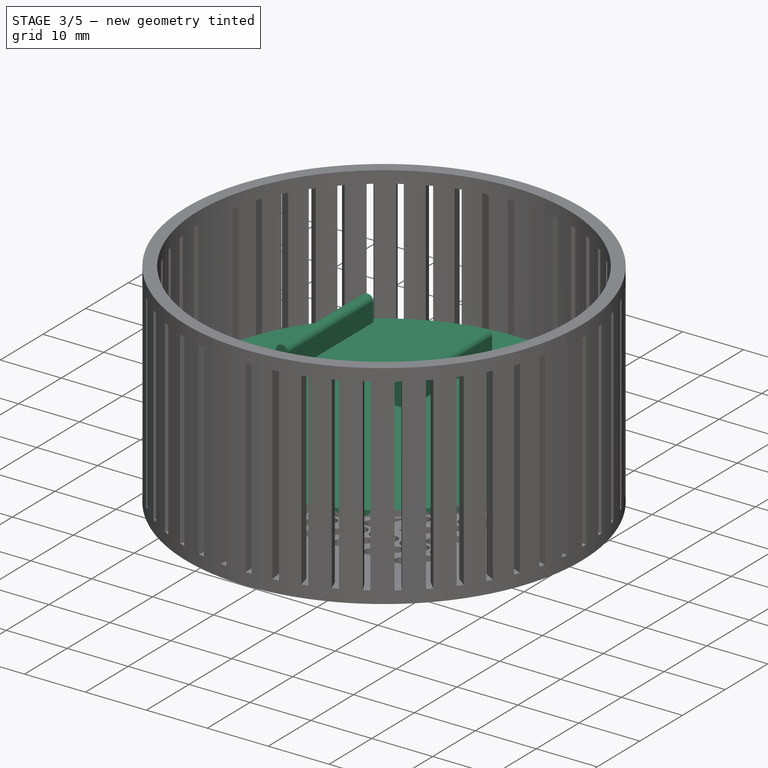
[diagram: stage 3 of 5 — iso view after this stage's code; geometry added in this stage tinted green]
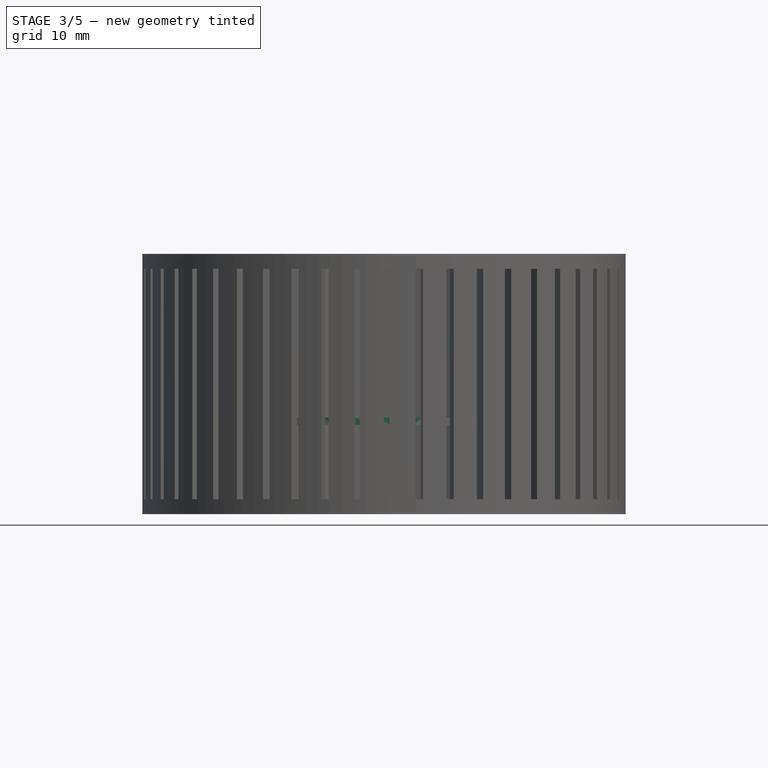
[diagram: stage 3 of 5 — front view after this stage's code; geometry added in this stage tinted green]
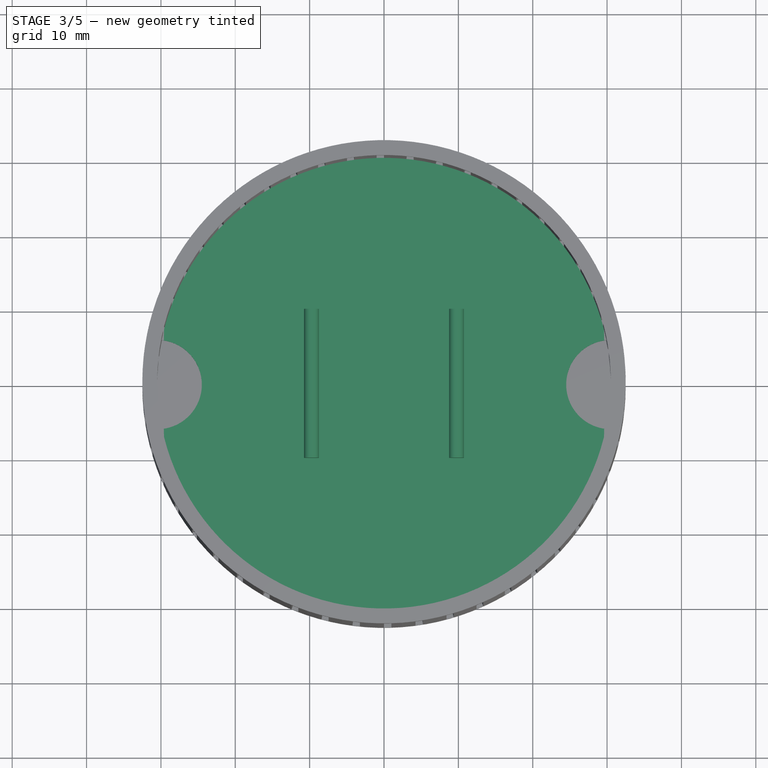
[diagram: stage 3 of 5 — top view after this stage's code; geometry added in this stage tinted green]
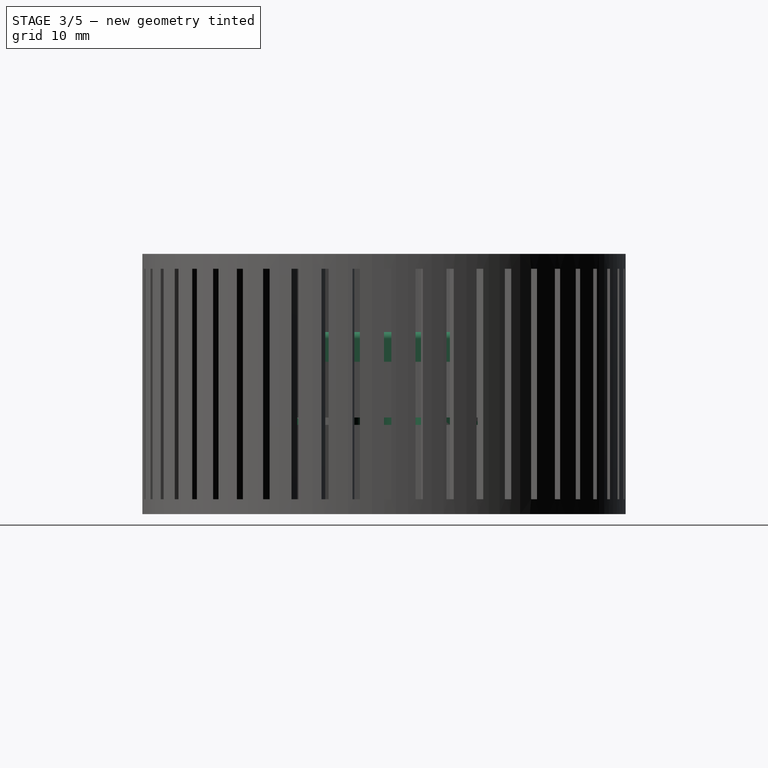
[diagram: stage 3 of 5 — right view after this stage's code; geometry added in this stage tinted green]
FEATURE [Sketcher::SketchObject] Sketch002
  FullyConstrained = true
  Placement = pos=(0,0,12) rot=(0,0,1;0rad)
  sketch-geometry (4):
    g0: ArcOfCircle CenterX=0 CenterY=0 CenterZ=0 NormalX=0 NormalY=0 NormalZ=1 AngleXU=0 Radius=30.5 StartAngle=3.33863 EndAngle=6.08614
    g1: ArcOfCircle CenterX=-30.5 CenterY=0 CenterZ=0 NormalX=0 NormalY=0 NormalZ=1 AngleXU=0 Radius=6 StartAngle=4.81091 EndAngle=7.75546
    g2: ArcOfCircle CenterX=30.5 CenterY=-4.30462e-05 CenterZ=0 NormalX=0 NormalY=0 NormalZ=1 AngleXU=0 Radius=6 StartAngle=1.66931 EndAngle=4.61387
    g3: ArcOfCircle CenterX=0 CenterY=0 CenterZ=0 NormalX=0 NormalY=0 NormalZ=1 AngleXU=0 Radius=30.5 StartAngle=0.197038 EndAngle=2.94455
  constraints (14):
    c: Coincident(g0,g-1)
    c: Diameter(g0) = 61
    c: PointOnObject(g1,g-1)
    c: DistanceX(g1,g0) = 30.5
    c: Radius(g1) = 6
    c: Radius(g2) = 6
    c: DistanceX(g0,g2) = 30.5
    c: PointOnObject(g2,g0)
    c: Coincident(g3,g1)
    c: Coincident(g0,g1)
    c: Equal(g0,g3)
    c: Coincident(g0,g2)
    c: Coincident(g3,g2)
    c: Coincident(g0,g3)
FEATURE [Part::Extrusion] Extrude002
  Base = -> Sketch002
  Dir = (0,0,1)
  DirMode = 2
  FaceMakerClass = Part::FaceMakerBullseye
  LengthFwd = 1
  LengthRev = 0
  Solid = true
  Symmetric = false
FEATURE [Sketcher::SketchObject] Sketch005
  FullyConstrained = true
  Placement = pos=(0,0,19.5) rot=(0,0,1;0rad)
  sketch-geometry (4):
    g0: ArcOfCircle CenterX=0 CenterY=0 CenterZ=0 NormalX=0 NormalY=0 NormalZ=1 AngleXU=0 Radius=30.5 StartAngle=3.33863 EndAngle=6.08614
    g1: ArcOfCircle CenterX=-30.5 CenterY=0 CenterZ=0 NormalX=0 NormalY=0 NormalZ=1 AngleXU=0 Radius=6 StartAngle=4.81091 EndAngle=7.75546
    g2: ArcOfCircle CenterX=30.5 CenterY=-4.3047e-05 CenterZ=0 NormalX=0 NormalY=0 NormalZ=1 AngleXU=0 Radius=6 StartAngle=1.66931 EndAngle=4.61387
    g3: ArcOfCircle CenterX=0 CenterY=0 CenterZ=0 NormalX=0 NormalY=0 NormalZ=1 AngleXU=0 Radius=30.5 StartAngle=0.197038 EndAngle=2.94455
  constraints (14):
    c: Coincident(g0,g-1)
    c: Diameter(g0) = 61
    c: PointOnObject(g1,g-1)
    c: DistanceX(g1,g0) = 30.5
    c: Radius(g1) = 6
    c: Radius(g2) = 6
    c: DistanceX(g0,g2) = 30.5
    c: PointOnObject(g2,g0)
    c: Coincident(g3,g1)
    c: Coincident(g0,g1)
    c: Equal(g0,g3)
    c: Coincident(g0,g2)
    c: Coincident(g3,g2)
    c: Coincident(g0,g3)
FEATURE [Part::Extrusion] Extrude005
  Base = -> Sketch005
  Dir = (0,0,1)
  DirMode = 2
  FaceMakerClass = Part::FaceMakerBullseye
  LengthFwd = 1
  LengthRev = 0
  Solid = true
  Symmetric = false
FEATURE [Sketcher::SketchObject] Sketch006
  FullyConstrained = true
  MapMode = 5
  Placement = pos=(0,0,20.5) rot=(0,0,1;0rad)
  Support = -> [Extrude005]
  sketch-geometry (8):
    g0: LineSegment StartX=-10.75 StartY=10 StartZ=0 EndX=-8.75 EndY=10 EndZ=0
    g1: LineSegment StartX=-8.75 StartY=10 StartZ=0 EndX=-8.75 EndY=-10 EndZ=0
    g2: LineSegment StartX=-8.75 StartY=-10 StartZ=0 EndX=-10.75 EndY=-10 EndZ=0
    g3: LineSegment StartX=-10.75 StartY=-10 StartZ=0 EndX=-10.75 EndY=10 EndZ=0
    g4: LineSegment StartX=8.75 StartY=10 StartZ=0 EndX=10.75 EndY=10 EndZ=0
    g5: LineSegment StartX=10.75 StartY=10 StartZ=0 EndX=10.75 EndY=-10 EndZ=0
    g6: LineSegment StartX=10.75 StartY=-10 StartZ=0 EndX=8.75 EndY=-10 EndZ=0
    g7: LineSegment StartX=8.75 StartY=-10 StartZ=0 EndX=8.75 EndY=10 EndZ=0
  constraints (24):
    c: Coincident(g0,g1)
    c: Coincident(g1,g2)
    c: Coincident(g2,g3)
    c: Coincident(g3,g0)
    c: Horizontal(g0)
    c: Horizontal(g2)
    c: Vertical(g1)
    c: Vertical(g3)
    c: DistanceY(g1,g1) = 20
    c: DistanceX(g2,g2) = 2
    c: DistanceY(g-1,g0) = 10
    c: DistanceX(g0,g-1) = 8.75
    c: Coincident(g4,g5)
    c: Coincident(g5,g6)
    c: Coincident(g6,g7)
    c: Coincident(g7,g4)
    c: Horizontal(g4)
    c: Horizontal(g6)
    c: Vertical(g5)
    c: Vertical(g7)
    c: DistanceX(g4,g4) = 2
    c: DistanceY(g5,g5) = 20
    c: DistanceY(g4,g0) = 0
    c: DistanceX(g-1,g4) = 8.75
FEATURE [Part::Extrusion] Extrude006
  Base = -> Sketch006
  Dir = (0,0,1)
  DirMode = 2
  FaceMakerClass = Part::FaceMakerBullseye
  LengthFwd = 4
  LengthRev = 0
  Solid = true
  Symmetric = false
FEATURE [Part::Fillet] Fillet002
  Base = -> Extrude006
  Edges = 4 edges r=0.9: [Edge7,Edge12,Edge19,Edge24]
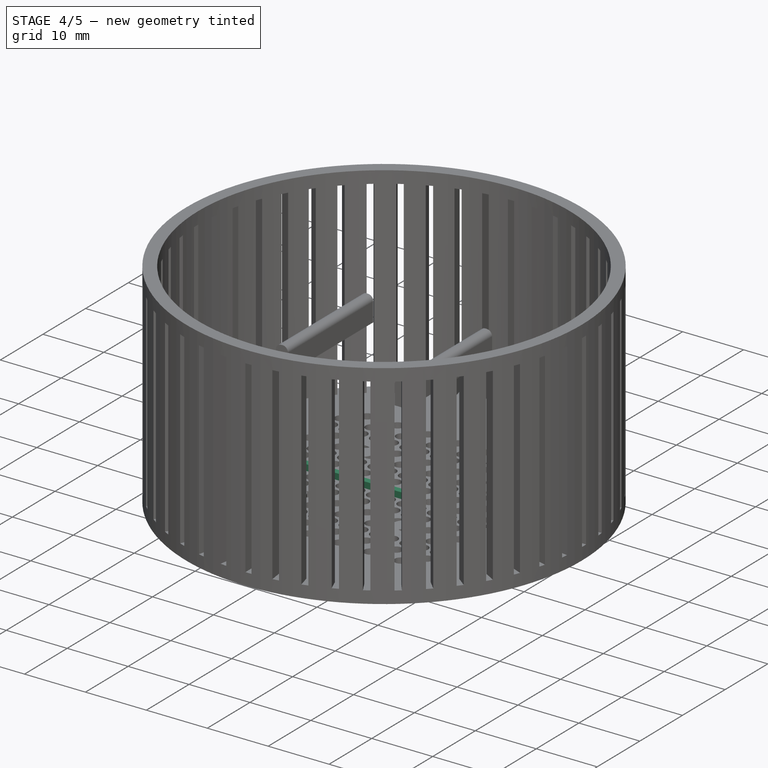
[diagram: stage 4 of 5 — iso view after this stage's code; geometry added in this stage tinted green]
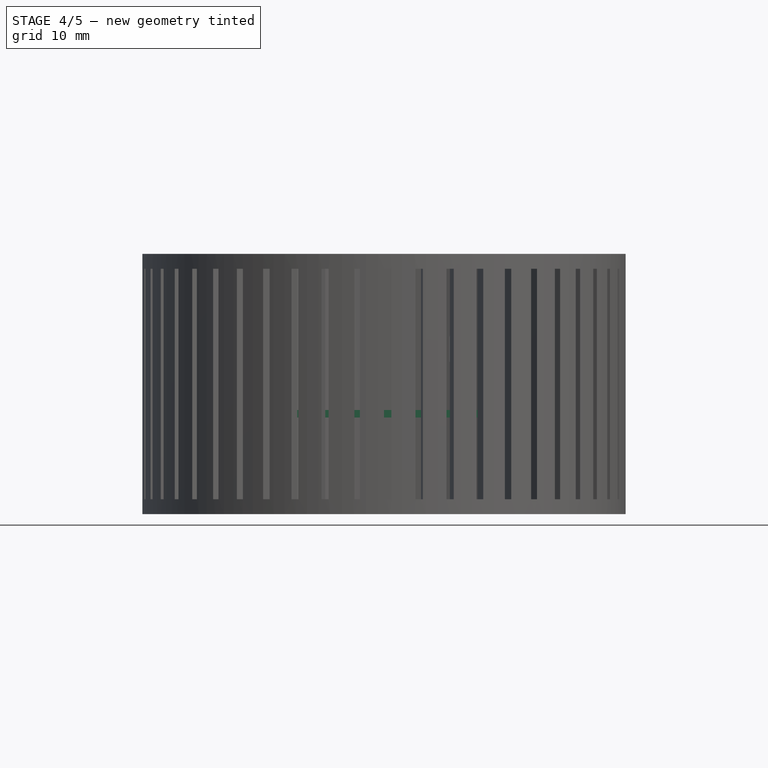
[diagram: stage 4 of 5 — front view after this stage's code; geometry added in this stage tinted green]
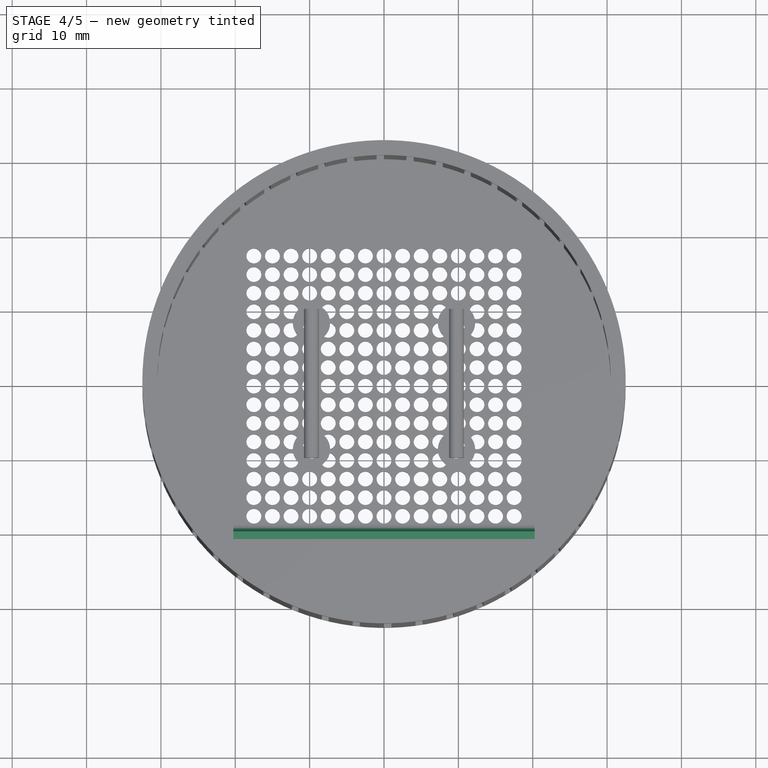
[diagram: stage 4 of 5 — top view after this stage's code; geometry added in this stage tinted green]
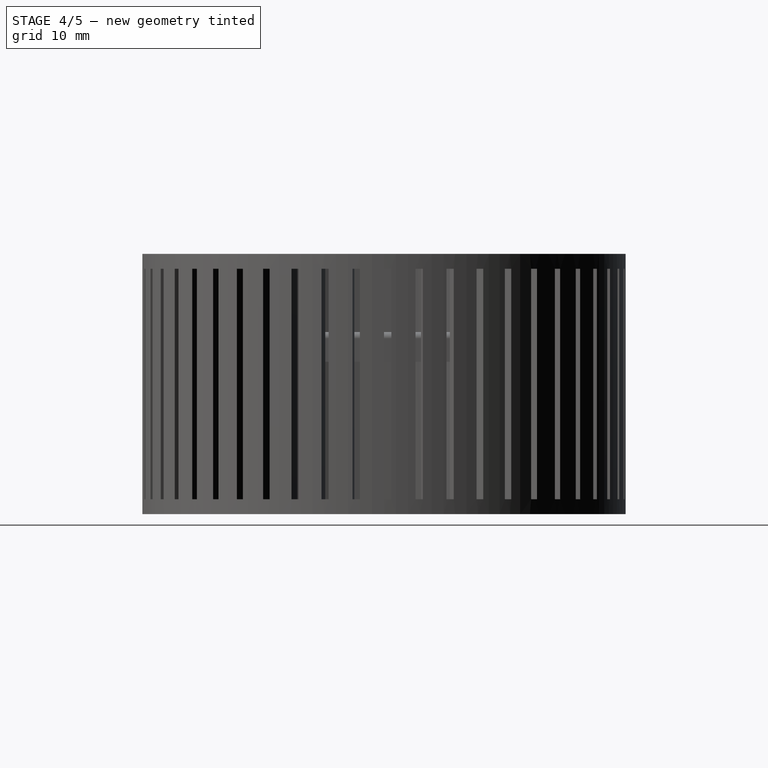
[diagram: stage 4 of 5 — right view after this stage's code; geometry added in this stage tinted green]
FEATURE [Sketcher::SketchObject] Sketch003
  FullyConstrained = true
  MapMode = 5
  Placement = pos=(0,0,13) rot=(0,0,1;0rad)
  Support = -> [Extrude002]
  sketch-geometry (4):
    g0: LineSegment StartX=-20.25 StartY=-18.75 StartZ=0 EndX=20.25 EndY=-18.75 EndZ=0
    g1: LineSegment StartX=20.25 StartY=-18.75 StartZ=0 EndX=20.25 EndY=-20.75 EndZ=0
    g2: LineSegment StartX=20.25 StartY=-20.75 StartZ=0 EndX=-20.25 EndY=-20.75 EndZ=0
    g3: LineSegment StartX=-20.25 StartY=-20.75 StartZ=0 EndX=-20.25 EndY=-18.75 EndZ=0
  constraints (12):
    c: Coincident(g0,g1)
    c: Coincident(g1,g2)
    c: Coincident(g2,g3)
    c: Coincident(g3,g0)
    c: Horizontal(g0)
    c: Horizontal(g2)
    c: Vertical(g1)
    c: Vertical(g3)
    c: DistanceX(g0,g0) = 40.5
    c: DistanceY(g1,g1) = 2
    c: DistanceX(g2,g-1) = 20.25
    c: DistanceY(g2,g-1) = 20.75
FEATURE [Part::Extrusion] Extrude003
  Base = -> Sketch003
  Dir = (0,0,1)
  DirMode = 2
  FaceMakerClass = Part::FaceMakerBullseye
  LengthFwd = 1
  LengthRev = 0
  Solid = true
  Symmetric = false
FEATURE [Sketcher::SketchObject] Sketch004
  ExternalGeometry = -> [Extrude003]
  FullyConstrained = true
  MapMode = 5
  Placement = pos=(-20.25,0,0) rot=(0.57735,-0.57735,-0.57735;2.0944rad)
  Support = -> [Extrude003]
  sketch-geometry (3):
    g0: ArcOfCircle CenterX=18.75 CenterY=14 CenterZ=0 NormalX=0 NormalY=0 NormalZ=1 AngleXU=0 Radius=1 StartAngle=4.71239 EndAngle=6.28319
    g1: LineSegment StartX=18.75 StartY=14 StartZ=0 EndX=19.75 EndY=14 EndZ=0
    g2: LineSegment StartX=18.75 StartY=14 StartZ=0 EndX=18.75 EndY=13 EndZ=0
  constraints (7):
    c: Coincident(g2,g-5)
    c: Coincident(g2,g-5)
    c: Coincident(g0,g2)
    c: Coincident(g1,g0)
    c: Coincident(g0,g2)
    c: Coincident(g1,g0)
    c: DistanceY(g-4,g0) = 0
FEATURE [Part::Extrusion] Extrude004
  Base = -> Sketch004
  Dir = (-1,0,0)
  DirMode = 2
  FaceMakerClass = Part::FaceMakerBullseye
  LengthFwd = 40.5
  LengthRev = 0
  Reversed = true
  Solid = true
  Symmetric = false
FEATURE [Part::Cut] Cut
  Base = -> Extrude003
  Tool = -> Extrude004
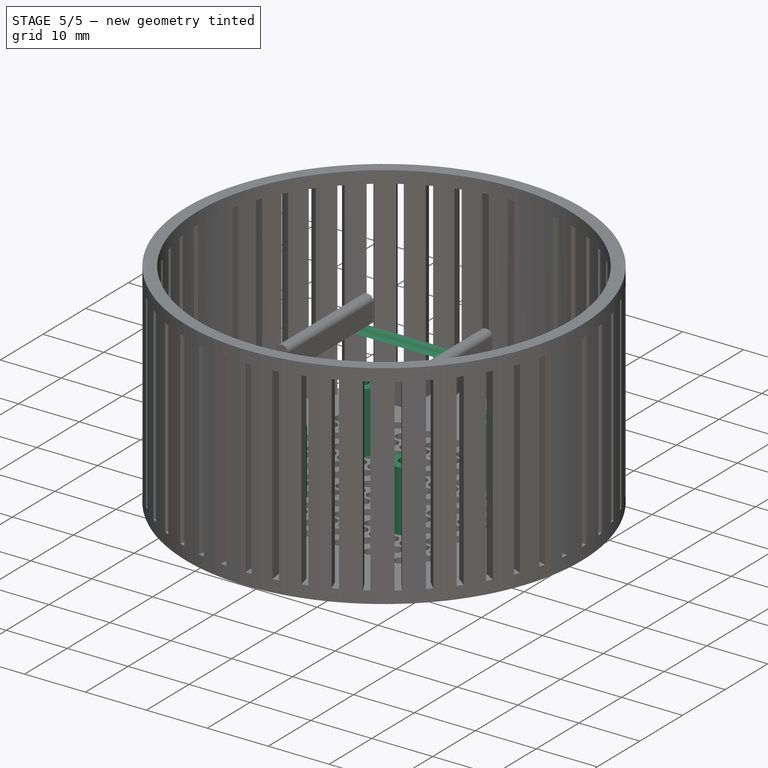
[diagram: stage 5 of 5 — iso view after this stage's code; geometry added in this stage tinted green]
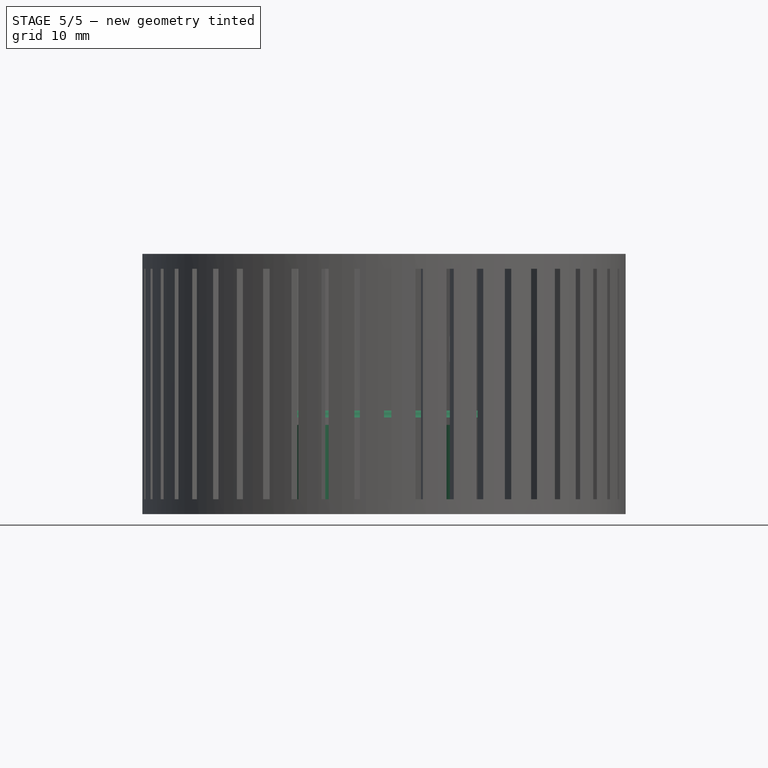
[diagram: stage 5 of 5 — front view after this stage's code; geometry added in this stage tinted green]
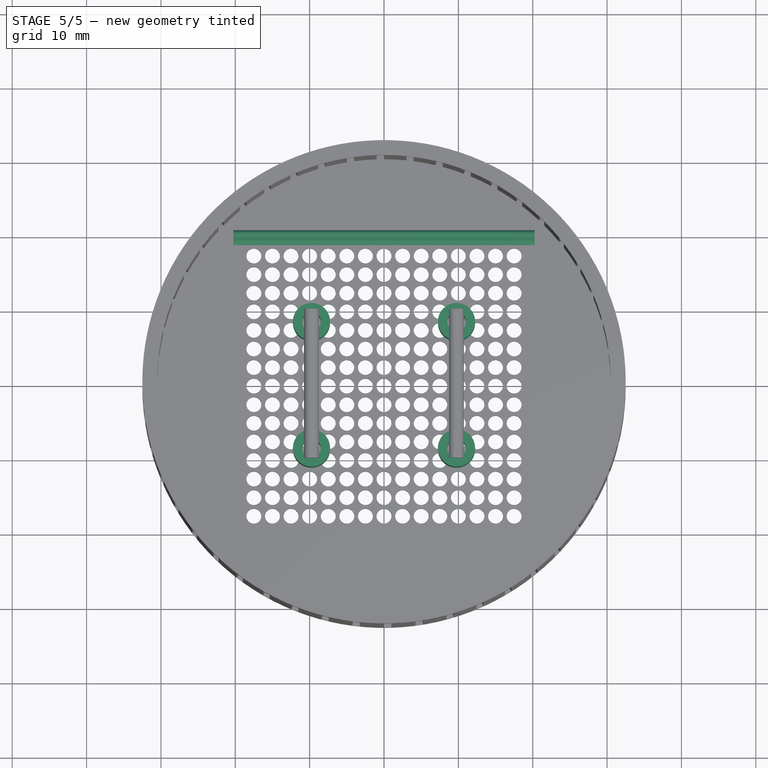
[diagram: stage 5 of 5 — top view after this stage's code; geometry added in this stage tinted green]
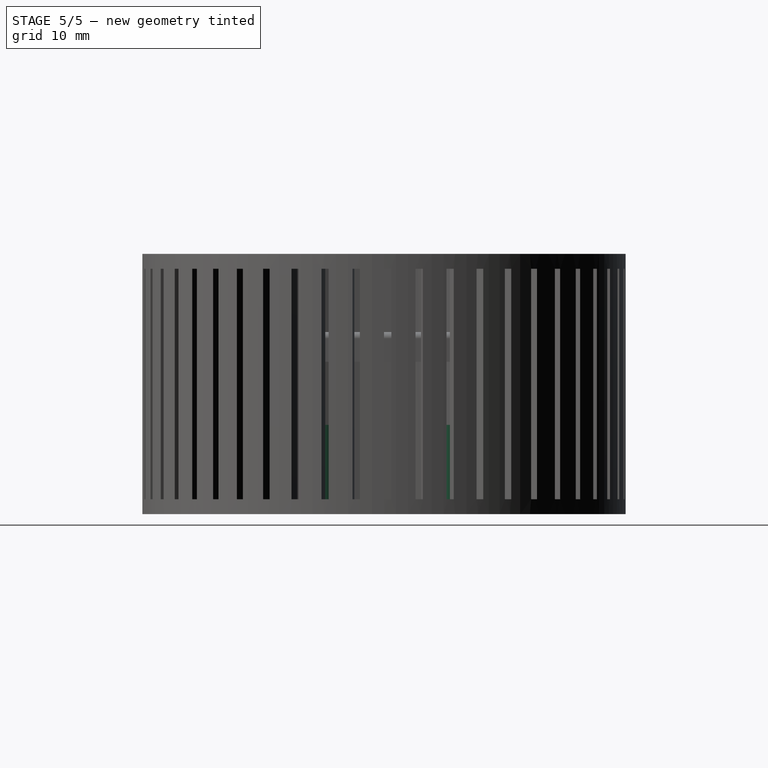
[diagram: stage 5 of 5 — right view after this stage's code; geometry added in this stage tinted green]
FEATURE [Sketcher::SketchObject] Sketch001
  FullyConstrained = true
  MapMode = 5
  Placement = pos=(0,0,2) rot=(0,0,1;0rad)
  Support = -> [Thickness]
  sketch-geometry (8):
    g0: Circle CenterX=9.75 CenterY=8.5 CenterZ=0 NormalX=0 NormalY=0 NormalZ=1 AngleXU=0 Radius=2.5
    g1: Circle CenterX=9.75 CenterY=-8.5 CenterZ=0 NormalX=0 NormalY=0 NormalZ=1 AngleXU=0 Radius=2.5
    g2: Circle CenterX=-9.75 CenterY=-8.5 CenterZ=0 NormalX=0 NormalY=0 NormalZ=1 AngleXU=0 Radius=2.5
    g3: Circle CenterX=-9.75 CenterY=8.5 CenterZ=0 NormalX=0 NormalY=0 NormalZ=1 AngleXU=0 Radius=2.5
    g4: Circle CenterX=9.75 CenterY=8.5 CenterZ=0 NormalX=0 NormalY=0 NormalZ=1 AngleXU=0 Radius=1.25
    g5: Circle CenterX=9.75 CenterY=-8.5 CenterZ=0 NormalX=0 NormalY=0 NormalZ=1 AngleXU=0 Radius=1.25
    g6: Circle CenterX=-9.75 CenterY=-8.5 CenterZ=0 NormalX=0 NormalY=0 NormalZ=1 AngleXU=0 Radius=1.25
    g7: Circle CenterX=-9.75 CenterY=8.5 CenterZ=0 NormalX=0 NormalY=0 NormalZ=1 AngleXU=0 Radius=1.25
  constraints (20):
    c: Equal(g0,g1)
    c: Equal(g2,g0)
    c: Equal(g3,g0)
    c: Diameter(g0) = 5
    c: DistanceX(g3,g0) = 19.5
    c: DistanceX(g1,g0) = 0
    c: DistanceX(g3,g2) = 0
    c: DistanceY(g3,g0) = 0
    c: DistanceY(g2,g1) = 0
    c: DistanceY(g1,g0) = 17
    c: DistanceX(g-1,g0) = 9.75
    c: DistanceY(g-1,g0) = 8.5
    c: Coincident(g4,g0)
    c: Radius(g4) = 1.25
    c: Coincident(g5,g1)
    c: Coincident(g6,g2)
    c: Coincident(g7,g3)
    c: Equal(g7,g4)
    c: Equal(g6,g4)
    c: Equal(g5,g4)
FEATURE [Part::Extrusion] Extrude001
  Base = -> Sketch001
  Dir = (0,0,1)
  DirMode = 2
  FaceMakerClass = Part::FaceMakerBullseye
  LengthFwd = 10
  LengthRev = 0
  Solid = true
  Symmetric = false
FEATURE [Part::Fillet] Fillet
  Base = -> Cut
  Edges = 1 edges r=1: [Edge5]
FEATURE [Part::Fillet] Fillet001
  Base = -> Fillet
  Edges = 1 edges r=0.5: [Edge15]
FEATURE [Part::Mirroring] Part__Mirroring  label="Fillet001 (Mirror #1)"
  Base = (0,0,0)
  Normal = (0,1,0)
  Source = -> Fillet001
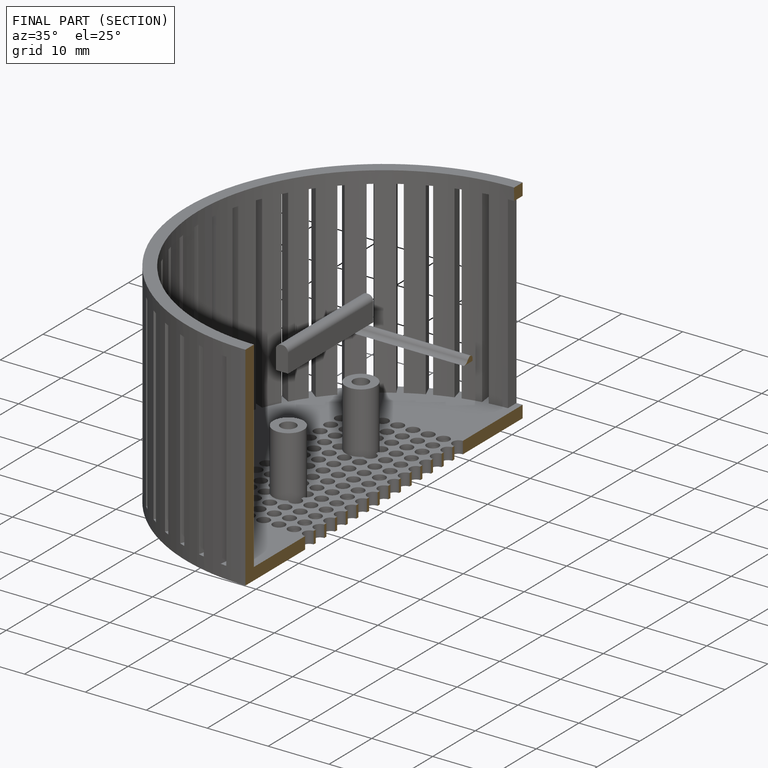
[diagram: finished part — half-section view (interior)]
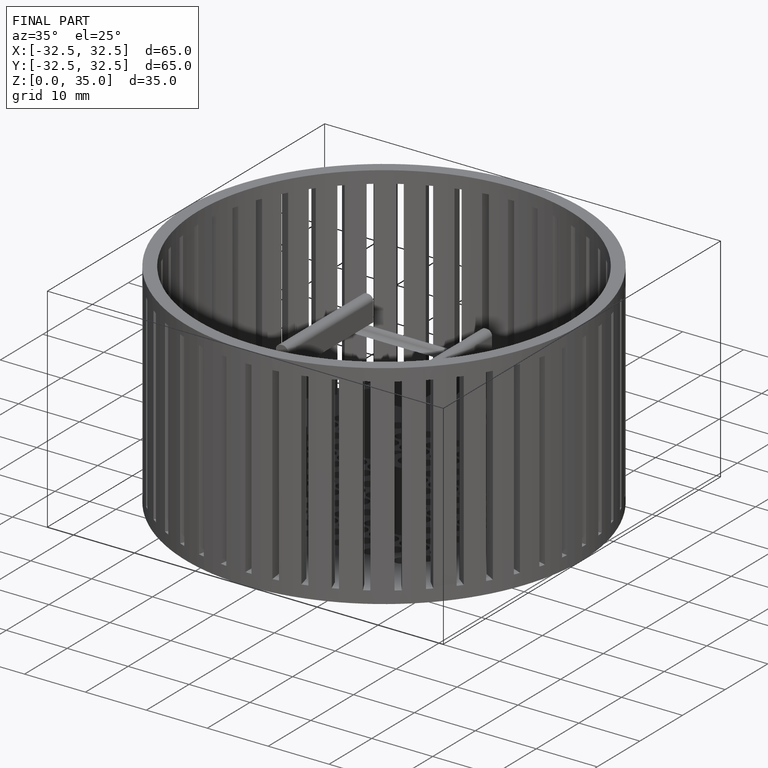
[diagram: finished part — iso view with bounding-box wireframe]
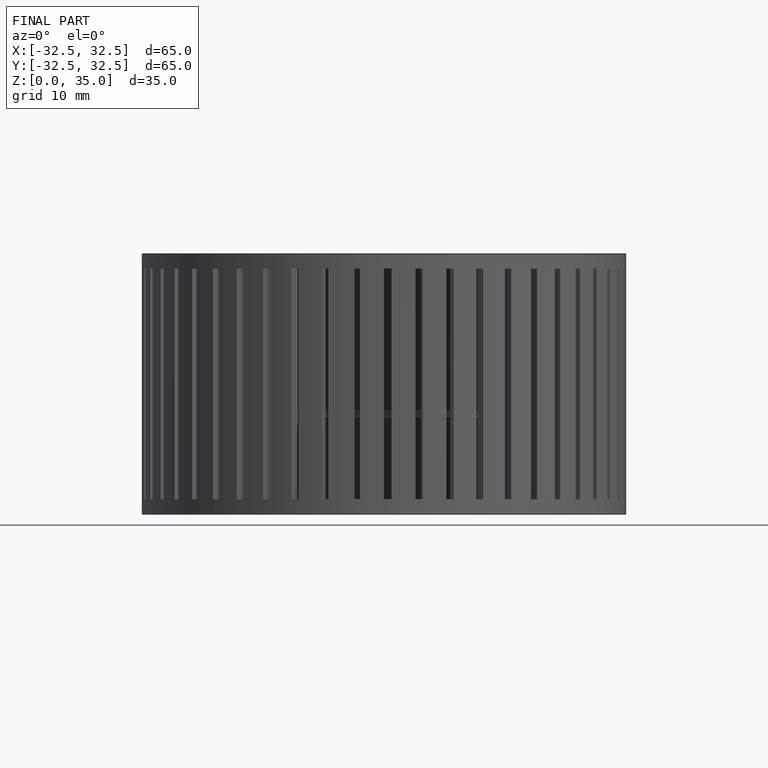
[diagram: finished part — front view with bounding-box wireframe]
